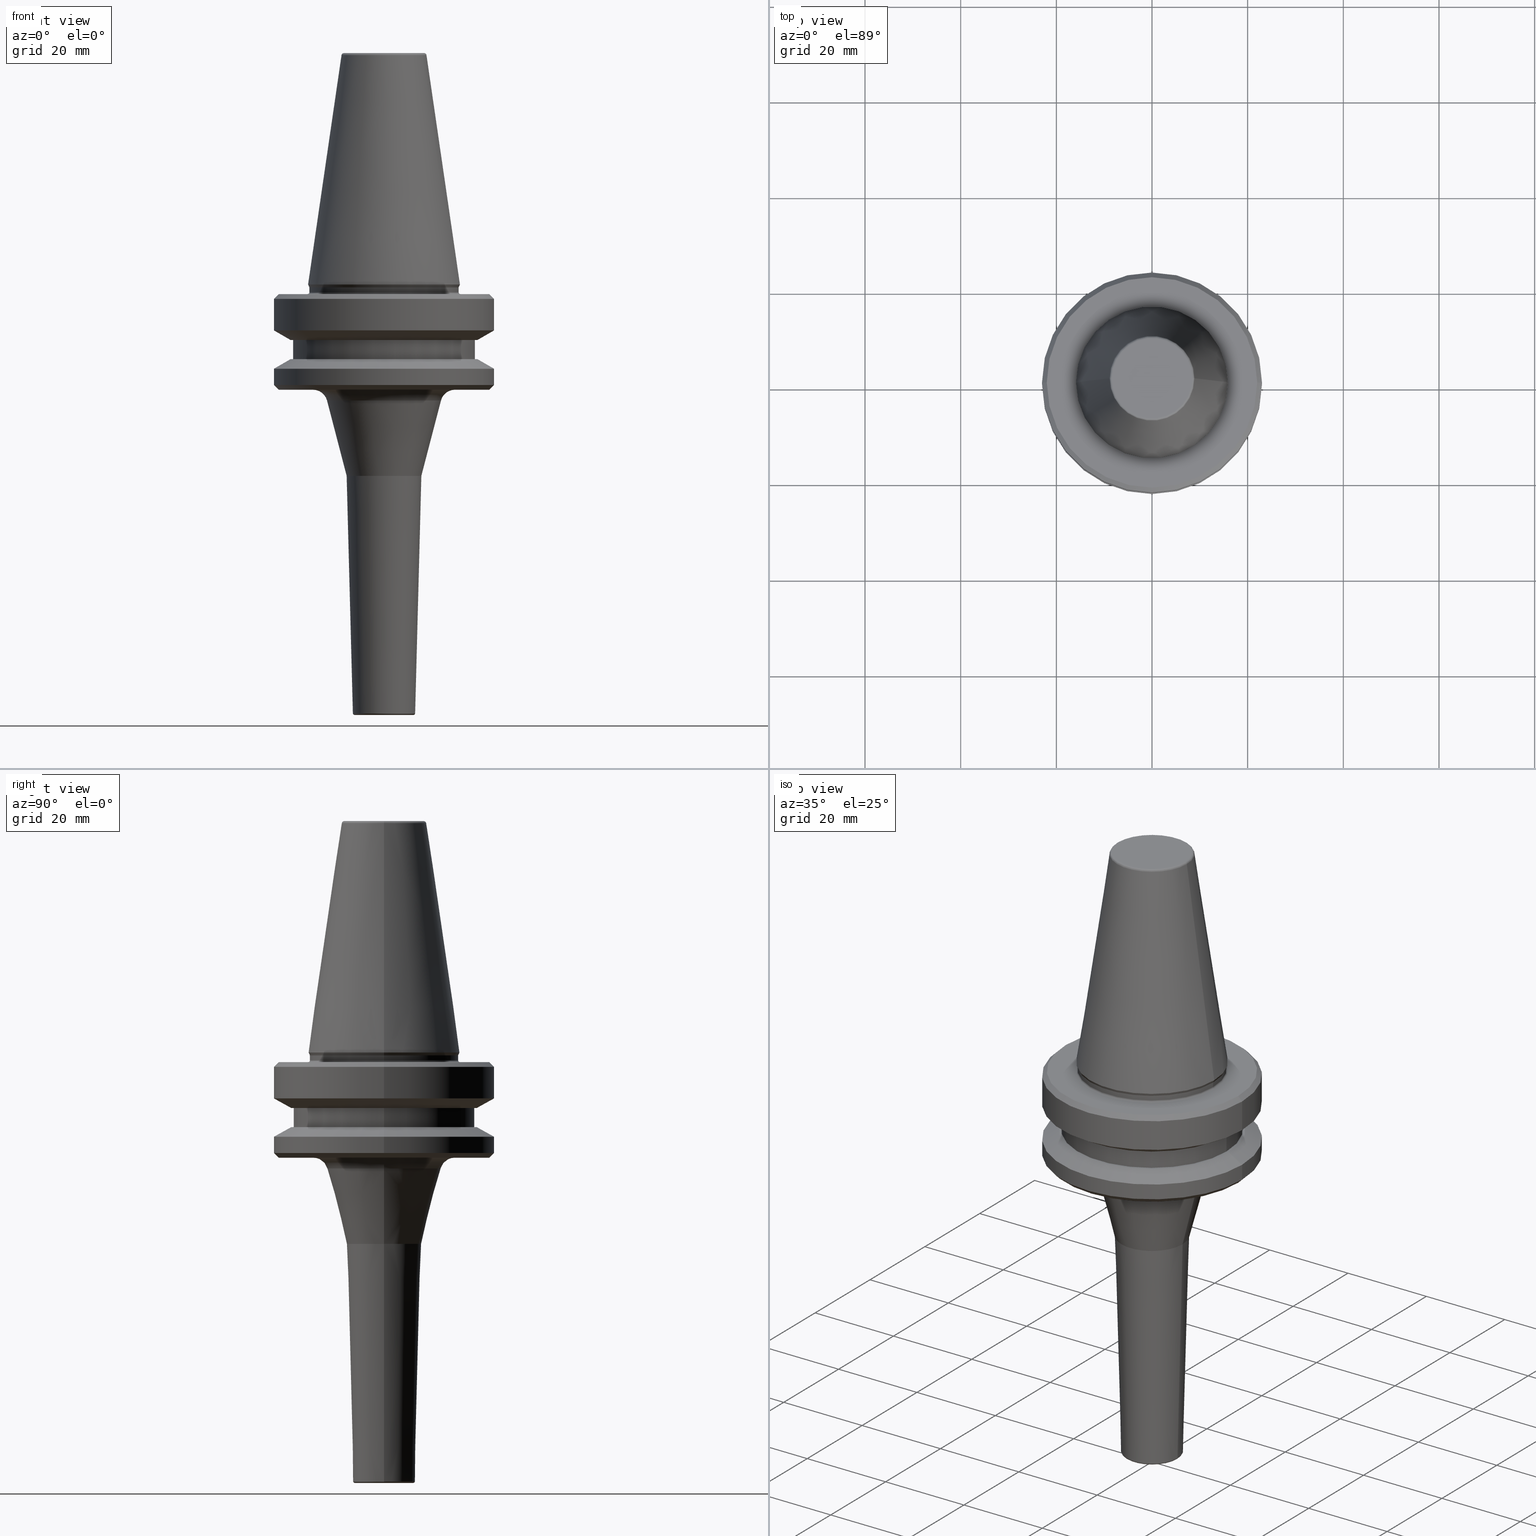
[diagram: canonical four-view strip — front | top / right | iso, engineering-drawing reading convention]
A machine part, canonical four-view strip (front | top / right | iso — engineering-drawing reading convention). The complete STEP part file that produces these views, byte-faithful:
ISO-10303-21;
HEADER;
FILE_DESCRIPTION (( 'STEP AP203' ),
    '1' );
FILE_NAME ('BT30 DMC 06 090 AD-2.5G 25000 SL.STEP',
    '2019-05-24T09:04:20',
    ( '' ),
    ( '' ),
    'SwSTEP 2.0',
    'SolidWorks 2014',
    '' );
FILE_SCHEMA (( 'CONFIG_CONTROL_DESIGN' ));
ENDSEC;

DATA;
#1 = CIRCLE ( 'NONE', #175, 15.87500000000002800 ) ;
#2 = EDGE_LOOP ( 'NONE', ( #732, #693 ) ) ;
#3 = DIRECTION ( 'NONE',  ( 1.000000000000000000, 0.0000000000000000000, 0.0000000000000000000 ) ) ;
#4 = ORIENTED_EDGE ( 'NONE', *, *, #885, .F. ) ;
#5 = CARTESIAN_POINT ( 'NONE',  ( 0.0000000000000000000, 0.0000000000000000000, -11.59999999999961100 ) ) ;
#6 = EDGE_LOOP ( 'NONE', ( #625, #359, #145, #588 ) ) ;
#7 = EDGE_LOOP ( 'NONE', ( #16, #125, #609, #622 ) ) ;
#8 = EDGE_LOOP ( 'NONE', ( #826, #1002, #470, #877 ) ) ;
#9 = CC_DESIGN_PERSON_AND_ORGANIZATION_ASSIGNMENT ( #971, #844, ( #352 ) ) ;
#10 = EDGE_CURVE ( 'NONE', #580, #158, #632, .T. ) ;
#11 = CIRCLE ( 'NONE', #629, 8.878994820583560700 ) ;
#12 = AXIS2_PLACEMENT_3D ( 'NONE', #848, #934, #146 ) ;
#13 = CIRCLE ( 'NONE', #426, 19.00000000000023800 ) ;
#14 = FACE_OUTER_BOUND ( 'NONE', #1026, .T. ) ;
#15 = DIRECTION ( 'NONE',  ( -0.0000000000000000000, -0.0000000000000000000, 1.000000000000000000 ) ) ;
#16 = ORIENTED_EDGE ( 'NONE', *, *, #522, .F. ) ;
#17 = ORIENTED_EDGE ( 'NONE', *, *, #446, .T. ) ;
#18 = VERTEX_POINT ( 'NONE', #956 ) ;
#19 = DIRECTION ( 'NONE',  ( -0.0000000000000000000, -0.0000000000000000000, 1.000000000000000000 ) ) ;
#20 = APPROVAL ( #684, 'UNSPECIFIED' ) ;
#21 = DIRECTION ( 'NONE',  ( 1.000000000000000000, 0.0000000000000000000, 0.0000000000000000000 ) ) ;
#22 = CIRCLE ( 'NONE', #953, 19.53610161513788400 ) ;
#23 = ORIENTED_EDGE ( 'NONE', *, *, #819, .F. ) ;
#24 = AXIS2_PLACEMENT_3D ( 'NONE', #717, #324, #3 ) ;
#25 = ORIENTED_EDGE ( 'NONE', *, *, #10, .T. ) ;
#26 = ORIENTED_EDGE ( 'NONE', *, *, #674, .T. ) ;
#27 = DIRECTION ( 'NONE',  ( 1.000000000000000000, 0.0000000000000000000, 0.0000000000000000000 ) ) ;
#28 = EDGE_LOOP ( 'NONE', ( #58, #892, #366, #618 ) ) ;
#29 = ORIENTED_EDGE ( 'NONE', *, *, #73, .T. ) ;
#30 = DIRECTION ( 'NONE',  ( -0.2521728199895472100, 3.088226368321606600E-017, 0.9676822148094483800 ) ) ;
#31 = CARTESIAN_POINT ( 'NONE',  ( 0.0000000000000000000, 0.0000000000000000000, -20.99999999999990800 ) ) ;
#32 = DIRECTION ( 'NONE',  ( 1.000000000000000000, 0.0000000000000000000, 0.0000000000000000000 ) ) ;
#33 = AXIS2_PLACEMENT_3D ( 'NONE', #939, #52, #538 ) ;
#34 = DIRECTION ( 'NONE',  ( 0.8660254037844388200, 1.060575238724907200E-016, -0.4999999999999997200 ) ) ;
#35 = ADVANCED_FACE ( 'NONE', ( #502, #14 ), #774, .F. ) ;
#36 = CARTESIAN_POINT ( 'NONE',  ( 0.0000000000000000000, 0.0000000000000000000, -21.99999999999965900 ) ) ;
#37 = DIRECTION ( 'NONE',  ( 1.000000000000000000, 0.0000000000000000000, 0.0000000000000000000 ) ) ;
#38 = CIRCLE ( 'NONE', #343, 16.00000000000045800 ) ;
#39 = CIRCLE ( 'NONE', #798, 22.00000000000002100 ) ;
#40 = ORIENTED_EDGE ( 'NONE', *, *, #268, .T. ) ;
#41 = EDGE_CURVE ( 'NONE', #868, #389, #835, .T. ) ;
#42 = ORIENTED_EDGE ( 'NONE', *, *, #245, .F. ) ;
#43 = AXIS2_PLACEMENT_3D ( 'NONE', #635, #789, #727 ) ;
#44 = ORIENTED_EDGE ( 'NONE', *, *, #234, .F. ) ;
#45 = DIRECTION ( 'NONE',  ( 1.000000000000000000, 0.0000000000000000000, 0.0000000000000000000 ) ) ;
#46 = DIRECTION ( 'NONE',  ( 1.000000000000000000, 0.0000000000000000000, 0.0000000000000000000 ) ) ;
#47 = CARTESIAN_POINT ( 'NONE',  ( 0.0000000000000000000, 0.0000000000000000000, -2.000000000000223800 ) ) ;
#48 = SECURITY_CLASSIFICATION_LEVEL ( 'unclassified' ) ;
#49 = EDGE_CURVE ( 'NONE', #755, #904, #387, .T. ) ;
#50 = CARTESIAN_POINT ( 'NONE',  ( 0.0000000000000000000, 0.0000000000000000000, 47.89999999999938800 ) ) ;
#51 = COORDINATED_UNIVERSAL_TIME_OFFSET ( 5, 30, .AHEAD. ) ;
#52 = DIRECTION ( 'NONE',  ( -0.0000000000000000000, -0.0000000000000000000, 1.000000000000000000 ) ) ;
#53 = ADVANCED_FACE ( 'NONE', ( #289 ), #675, .T. ) ;
#54 = FACE_OUTER_BOUND ( 'NONE', #620, .T. ) ;
#55 = DIRECTION ( 'NONE',  ( -0.0000000000000000000, -0.0000000000000000000, 1.000000000000000000 ) ) ;
#56 = DIRECTION ( 'NONE',  ( 1.000000000000000000, 0.0000000000000000000, 0.0000000000000000000 ) ) ;
#57 = VECTOR ( 'NONE', #874, 1000.000000000000000 ) ;
#58 = ORIENTED_EDGE ( 'NONE', *, *, #72, .F. ) ;
#59 = DIRECTION ( 'NONE',  ( -1.000000000000000000, 1.224646799147352200E-016, 0.0000000000000000000 ) ) ;
#60 = EDGE_LOOP ( 'NONE', ( #890, #1015, #975, #69 ) ) ;
#61 = CARTESIAN_POINT ( 'NONE',  ( 0.0000000000000000000, 0.0000000000000000000, -1.599999999999823800 ) ) ;
#62 = EDGE_CURVE ( 'NONE', #997, #648, #631, .T. ) ;
#63 = AXIS2_PLACEMENT_3D ( 'NONE', #1022, #544, #59 ) ;
#64 = DIRECTION ( 'NONE',  ( 0.0000000000000000000, -1.000000000000000000, 0.0000000000000000000 ) ) ;
#65 = CARTESIAN_POINT ( 'NONE',  ( 0.0000000000000000000, 0.0000000000000000000, -1.599999999999823800 ) ) ;
#66 = LINE ( 'NONE', #385, #501 ) ;
#67 = CIRCLE ( 'NONE', #905, 0.4000000000004009200 ) ;
#68 = EDGE_LOOP ( 'NONE', ( #523, #621, #87, #1040 ) ) ;
#69 = ORIENTED_EDGE ( 'NONE', *, *, #748, .F. ) ;
#70 = CARTESIAN_POINT ( 'NONE',  ( 11.91536068568180300, 0.0000000000000000000, -24.24348154003075400 ) ) ;
#71 = EDGE_LOOP ( 'NONE', ( #794, #589, #856, #598 ) ) ;
#72 = EDGE_CURVE ( 'NONE', #646, #471, #402, .T. ) ;
#73 = EDGE_CURVE ( 'NONE', #389, #440, #607, .T. ) ;
#74 = CARTESIAN_POINT ( 'NONE',  ( 0.0000000000000000000, 0.0000000000000000000, -15.60000000000005800 ) ) ;
#75 = DIRECTION ( 'NONE',  ( 1.000000000000000000, 0.0000000000000000000, 0.0000000000000000000 ) ) ;
#76 = ADVANCED_FACE ( 'NONE', ( #451 ), #1039, .T. ) ;
#77 = CARTESIAN_POINT ( 'NONE',  ( 0.0000000000000000000, 0.0000000000000000000, -9.600117335054836300 ) ) ;
#78 = CARTESIAN_POINT ( 'NONE',  ( 0.0000000000000000000, 0.0000000000000000000, -2.000000000000223800 ) ) ;
#79 = EDGE_CURVE ( 'NONE', #665, #537, #13, .T. ) ;
#80 = AXIS2_PLACEMENT_3D ( 'NONE', #172, #489, #499 ) ;
#81 = CIRCLE ( 'NONE', #652, 23.00000000000002100 ) ;
#82 = DIRECTION ( 'NONE',  ( 0.0000000000000000000, 0.0000000000000000000, -1.000000000000000000 ) ) ;
#83 = CONICAL_SURFACE ( 'NONE', #692, 7.809296078459246000, 0.2549249863712674800 ) ;
#84 = CARTESIAN_POINT ( 'NONE',  ( -19.53610161513788400, 0.0000000000000000000, -15.60000000000005800 ) ) ;
#85 = CIRCLE ( 'NONE', #728, 23.00000000000002100 ) ;
#86 = ORIENTED_EDGE ( 'NONE', *, *, #642, .F. ) ;
#87 = ORIENTED_EDGE ( 'NONE', *, *, #545, .T. ) ;
#88 = DIRECTION ( 'NONE',  ( -0.0000000000000000000, -0.0000000000000000000, 1.000000000000000000 ) ) ;
#89 = EDGE_LOOP ( 'NONE', ( #495, #766, #100, #775 ) ) ;
#90 = EDGE_CURVE ( 'NONE', #842, #440, #216, .T. ) ;
#91 = AXIS2_PLACEMENT_3D ( 'NONE', #50, #931, #767 ) ;
#92 = ORIENTED_EDGE ( 'NONE', *, *, #990, .T. ) ;
#93 = EDGE_CURVE ( 'NONE', #805, #947, #792, .T. ) ;
#94 = DIRECTION ( 'NONE',  ( -0.0000000000000000000, -0.0000000000000000000, 1.000000000000000000 ) ) ;
#95 = DIRECTION ( 'NONE',  ( 1.000000000000000000, 0.0000000000000000000, 0.0000000000000000000 ) ) ;
#96 = EDGE_CURVE ( 'NONE', #520, #817, #38, .T. ) ;
#97 = CIRCLE ( 'NONE', #63, 0.4000000000004416700 ) ;
#98 = VERTEX_POINT ( 'NONE', #1019 ) ;
#99 = ORIENTED_EDGE ( 'NONE', *, *, #968, .F. ) ;
#100 = ORIENTED_EDGE ( 'NONE', *, *, #642, .T. ) ;
#101 = DIRECTION ( 'NONE',  ( 0.0000000000000000000, 0.0000000000000000000, -1.000000000000000000 ) ) ;
#102 = ADVANCED_FACE ( 'NONE', ( #887 ), #834, .T. ) ;
#103 = VERTEX_POINT ( 'NONE', #561 ) ;
#104 = EDGE_CURVE ( 'NONE', #197, #646, #67, .T. ) ;
#105 = AXIS2_PLACEMENT_3D ( 'NONE', #998, #516, #32 ) ;
#106 = CARTESIAN_POINT ( 'NONE',  ( 0.0000000000000000000, 19.53610161513942600, -11.59999999999961100 ) ) ;
#107 = DATE_AND_TIME ( #220, #822 ) ;
#108 = PERSON ( 'UNSPECIFIED', 'UNSPECIFIED', 'UNSPECIFIED', ('UNSPECIFIED'), ('UNSPECIFIED'), ('UNSPECIFIED') ) ;
#109 = APPROVAL_PERSON_ORGANIZATION ( #132, #568, #461 ) ;
#110 = CC_DESIGN_APPROVAL ( #20, ( #583 ) ) ;
#111 = AXIS2_PLACEMENT_3D ( 'NONE', #595, #429, #515 ) ;
#112 = CIRCLE ( 'NONE', #507, 8.384228427309182100 ) ;
#113 = EDGE_CURVE ( 'NONE', #197, #565, #171, .T. ) ;
#114 = VECTOR ( 'NONE', #711, 1000.000000000000100 ) ;
#115 = ORIENTED_EDGE ( 'NONE', *, *, #1048, .T. ) ;
#116 = CARTESIAN_POINT ( 'NONE',  ( 0.0000000000000000000, 2.775557561562891400E-014, -90.00000000000029800 ) ) ;
#117 = ORIENTED_EDGE ( 'NONE', *, *, #113, .F. ) ;
#118 = APPROVAL ( #762, 'UNSPECIFIED' ) ;
#119 = EDGE_CURVE ( 'NONE', #755, #1000, #586, .T. ) ;
#120 = DIRECTION ( 'NONE',  ( -0.0000000000000000000, -0.0000000000000000000, 1.000000000000000000 ) ) ;
#121 = CONICAL_SURFACE ( 'NONE', #267, 15.87500000000002800, 0.1448138461595632500 ) ;
#122 = DIRECTION ( 'NONE',  ( 1.000000000000000000, 0.0000000000000000000, 0.0000000000000000000 ) ) ;
#123 = CIRCLE ( 'NONE', #24, 19.53610161513788400 ) ;
#124 = AXIS2_PLACEMENT_3D ( 'NONE', #189, #591, #342 ) ;
#125 = ORIENTED_EDGE ( 'NONE', *, *, #573, .T. ) ;
#126 = ORIENTED_EDGE ( 'NONE', *, *, #62, .T. ) ;
#127 = DIRECTION ( 'NONE',  ( 1.000000000000000000, 0.0000000000000000000, 0.0000000000000000000 ) ) ;
#128 = DIRECTION ( 'NONE',  ( -1.000000000000000000, 1.224646799147354200E-016, 0.0000000000000000000 ) ) ;
#129 = ADVANCED_FACE ( 'NONE', ( #801 ), #349, .T. ) ;
#130 = EDGE_CURVE ( 'NONE', #158, #705, #376, .T. ) ;
#131 = DIRECTION ( 'NONE',  ( -0.0000000000000000000, -0.0000000000000000000, 1.000000000000000000 ) ) ;
#132 = PERSON_AND_ORGANIZATION ( #108, #571 ) ;
#133 = DIRECTION ( 'NONE',  ( 1.000000000000000000, 0.0000000000000000000, 0.0000000000000000000 ) ) ;
#134 = PERSON_AND_ORGANIZATION_ROLE ( 'design_owner' ) ;
#135 = ADVANCED_FACE ( 'NONE', ( #480 ), #536, .T. ) ;
#136 = CARTESIAN_POINT ( 'NONE',  ( 16.00000000000054000, 0.0000000000000000000, -2.000000000000244700 ) ) ;
#137 = CIRCLE ( 'NONE', #202, 16.00000000000045800 ) ;
#138 = CYLINDRICAL_SURFACE ( 'NONE', #188, 23.00000000000002100 ) ;
#139 = DIRECTION ( 'NONE',  ( -0.0000000000000000000, -0.0000000000000000000, 1.000000000000000000 ) ) ;
#140 = FACE_OUTER_BOUND ( 'NONE', #756, .T. ) ;
#141 = DATE_TIME_ROLE ( 'classification_date' ) ;
#142 = AXIS2_PLACEMENT_3D ( 'NONE', #564, #627, #602 ) ;
#143 = CARTESIAN_POINT ( 'NONE',  ( -8.384228427309265500, 1.026771850682453800E-015, 47.89999999999938800 ) ) ;
#144 = ADVANCED_FACE ( 'NONE', ( #563 ), #985, .T. ) ;
#145 = ORIENTED_EDGE ( 'NONE', *, *, #734, .F. ) ;
#146 = DIRECTION ( 'NONE',  ( 1.000000000000000000, 0.0000000000000000000, 0.0000000000000000000 ) ) ;
#147 = DIRECTION ( 'NONE',  ( -0.0000000000000000000, -0.0000000000000000000, 1.000000000000000000 ) ) ;
#148 = COORDINATED_UNIVERSAL_TIME_OFFSET ( 5, 30, .AHEAD. ) ;
#149 = CALENDAR_DATE ( 2019, 24, 5 ) ;
#150 = AXIS2_PLACEMENT_3D ( 'NONE', #676, #557, #1041 ) ;
#151 = DIRECTION ( 'NONE',  ( 1.000000000000000000, 0.0000000000000000000, 0.0000000000000000000 ) ) ;
#152 = CIRCLE ( 'NONE', #973, 15.60000000000014200 ) ;
#153 = LINE ( 'NONE', #251, #752 ) ;
#154 = ADVANCED_FACE ( 'NONE', ( #423 ), #721, .T. ) ;
#155 = ORIENTED_EDGE ( 'NONE', *, *, #455, .T. ) ;
#156 = AXIS2_PLACEMENT_3D ( 'NONE', #235, #855, #697 ) ;
#157 = ADVANCED_FACE ( 'NONE', ( #744 ), #302, .T. ) ;
#158 = VERTEX_POINT ( 'NONE', #799 ) ;
#159 = DIRECTION ( 'NONE',  ( 1.000000000000000000, 0.0000000000000000000, 0.0000000000000000000 ) ) ;
#160 = ORIENTED_EDGE ( 'NONE', *, *, #545, .F. ) ;
#161 = ORIENTED_EDGE ( 'NONE', *, *, #113, .T. ) ;
#162 = PERSON_AND_ORGANIZATION ( #108, #571 ) ;
#163 = DIRECTION ( 'NONE',  ( 1.000000000000000000, 0.0000000000000000000, 0.0000000000000000000 ) ) ;
#164 = DIRECTION ( 'NONE',  ( -0.0000000000000000000, -0.0000000000000000000, 1.000000000000000000 ) ) ;
#165 = AXIS2_PLACEMENT_3D ( 'NONE', #373, #926, #457 ) ;
#166 = DIRECTION ( 'NONE',  ( 0.0000000000000000000, 0.0000000000000000000, -1.000000000000000000 ) ) ;
#167 = DIRECTION ( 'NONE',  ( 1.000000000000000000, 0.0000000000000000000, 0.0000000000000000000 ) ) ;
#168 = TOROIDAL_SURFACE ( 'NONE', #1044, 14.81840733011005500, 2.999999999999799700 ) ;
#169 = ADVANCED_FACE ( 'NONE', ( #510 ), #961, .T. ) ;
#170 = CIRCLE ( 'NONE', #240, 7.809296078459246000 ) ;
#171 = CIRCLE ( 'NONE', #264, 6.116367272004236400 ) ;
#172 = CARTESIAN_POINT ( 'NONE',  ( 0.0000000000000000000, 0.0000000000000000000, 47.89999999999938800 ) ) ;
#173 = AXIS2_PLACEMENT_3D ( 'NONE', #213, #528, #46 ) ;
#174 = CARTESIAN_POINT ( 'NONE',  ( 14.81840733011012500, 0.0000000000000000000, -21.99999999999966200 ) ) ;
#175 = AXIS2_PLACEMENT_3D ( 'NONE', #1046, #481, #876 ) ;
#176 = CARTESIAN_POINT ( 'NONE',  ( -19.00000000000023800, 2.326828918380000200E-015, 105.6755792788445500 ) ) ;
#177 = DIRECTION ( 'NONE',  ( 1.000000000000000000, 0.0000000000000000000, 0.0000000000000000000 ) ) ;
#178 = PRODUCT ( 'BT30 DMC 06 090 AD-2.5G 25000 SL', 'BT30 DMC 06 090 AD-2.5G 25000 SL', '', ( #608 ) ) ;
#179 = EDGE_CURVE ( 'NONE', #1000, #436, #330, .T. ) ;
#180 = DIRECTION ( 'NONE',  ( 0.0000000000000000000, 0.0000000000000000000, -1.000000000000000000 ) ) ;
#181 = CIRCLE ( 'NONE', #986, 19.00000000000023800 ) ;
#182 = CARTESIAN_POINT ( 'NONE',  ( 0.0000000000000000000, 0.0000000000000000000, -89.67947039659931400 ) ) ;
#183 = VECTOR ( 'NONE', #408, 1000.000000000000000 ) ;
#184 = ORIENTED_EDGE ( 'NONE', *, *, #420, .T. ) ;
#185 = EDGE_LOOP ( 'NONE', ( #393, #818, #439, #282 ) ) ;
#186 = VERTEX_POINT ( 'NONE', #265 ) ;
#187 = EDGE_CURVE ( 'NONE', #580, #807, #852, .T. ) ;
#188 = AXIS2_PLACEMENT_3D ( 'NONE', #927, #442, #613 ) ;
#189 = CARTESIAN_POINT ( 'NONE',  ( 0.0000000000000000000, 0.0000000000000000000, 105.6755792788445500 ) ) ;
#190 = APPROVAL_DATE_TIME ( #456, #20 ) ;
#191 = EDGE_CURVE ( 'NONE', #807, #705, #85, .T. ) ;
#192 = FACE_BOUND ( 'NONE', #339, .T. ) ;
#193 = DIRECTION ( 'NONE',  ( 1.000000000000000000, 0.0000000000000000000, 0.0000000000000000000 ) ) ;
#194 = LINE ( 'NONE', #891, #448 ) ;
#195 = VECTOR ( 'NONE', #873, 1000.000000000000000 ) ;
#196 = ORIENTED_EDGE ( 'NONE', *, *, #263, .T. ) ;
#197 = VERTEX_POINT ( 'NONE', #803 ) ;
#198 = ORIENTED_EDGE ( 'NONE', *, *, #922, .T. ) ;
#199 = ADVANCED_FACE ( 'NONE', ( #140 ), #575, .T. ) ;
#200 = DIRECTION ( 'NONE',  ( 1.000000000000000000, 0.0000000000000000000, 0.0000000000000000000 ) ) ;
#201 = CARTESIAN_POINT ( 'NONE',  ( -15.60000000000018300, 1.934941942652857500E-015, -1.599999999999823800 ) ) ;
#202 = AXIS2_PLACEMENT_3D ( 'NONE', #450, #1006, #527 ) ;
#203 = CARTESIAN_POINT ( 'NONE',  ( 0.0000000000000000000, 8.384228427309182100, 48.39999999999956500 ) ) ;
#204 = AXIS2_PLACEMENT_3D ( 'NONE', #203, #749, #284 ) ;
#205 = FACE_OUTER_BOUND ( 'NONE', #483, .T. ) ;
#206 = CIRCLE ( 'NONE', #811, 22.00000000000013100 ) ;
#207 = EDGE_LOOP ( 'NONE', ( #882, #236 ) ) ;
#208 = ORIENTED_EDGE ( 'NONE', *, *, #248, .T. ) ;
#209 = EDGE_CURVE ( 'NONE', #654, #98, #206, .T. ) ;
#210 = ADVANCED_FACE ( 'NONE', ( #851 ), #1024, .T. ) ;
#211 = CYLINDRICAL_SURFACE ( 'NONE', #863, 23.00000000000002100 ) ;
#212 = CC_DESIGN_SECURITY_CLASSIFICATION ( #583, ( #810 ) ) ;
#213 = CARTESIAN_POINT ( 'NONE',  ( 0.0000000000000000000, 0.0000000000000000000, 0.0000000000000000000 ) ) ;
#214 = CYLINDRICAL_SURFACE ( 'NONE', #372, 19.00000000000023800 ) ;
#215 = AXIS2_PLACEMENT_3D ( 'NONE', #1038, #15, #193 ) ;
#216 = LINE ( 'NONE', #462, #195 ) ;
#217 = VECTOR ( 'NONE', #698, 1000.000000000000000 ) ;
#218 = APPLICATION_PROTOCOL_DEFINITION ( 'international standard', 'config_control_design', 1994, #681 ) ;
#219 = EDGE_LOOP ( 'NONE', ( #708, #825, #160, #428 ) ) ;
#220 = CALENDAR_DATE ( 2019, 24, 5 ) ;
#221 = PERSON_AND_ORGANIZATION ( #108, #571 ) ;
#222 = CC_DESIGN_DATE_AND_TIME_ASSIGNMENT ( #430, #377, ( #352 ) ) ;
#223 = DIRECTION ( 'NONE',  ( 0.0000000000000000000, 0.0000000000000000000, -1.000000000000000000 ) ) ;
#224 = EDGE_CURVE ( 'NONE', #977, #436, #643, .T. ) ;
#225 = APPROVAL_ROLE ( '' ) ;
#226 = AXIS2_PLACEMENT_3D ( 'NONE', #491, #296, #37 ) ;
#227 = DIRECTION ( 'NONE',  ( -1.000000000000000000, 1.224646799147353700E-016, 0.0000000000000000000 ) ) ;
#228 = PLANE ( 'NONE',  #275 ) ;
#229 = CARTESIAN_POINT ( 'NONE',  ( 19.00000000000023800, 0.0000000000000000000, -11.59999999999961100 ) ) ;
#230 = DIRECTION ( 'NONE',  ( -0.0000000000000000000, -0.0000000000000000000, 1.000000000000000000 ) ) ;
#231 = DIRECTION ( 'NONE',  ( -0.0000000000000000000, -0.0000000000000000000, 1.000000000000000000 ) ) ;
#232 = FACE_OUTER_BOUND ( 'NONE', #6, .T. ) ;
#233 = ORIENTED_EDGE ( 'NONE', *, *, #474, .F. ) ;
#234 = EDGE_CURVE ( 'NONE', #1003, #537, #936, .T. ) ;
#235 = CARTESIAN_POINT ( 'NONE',  ( 0.0000000000000000000, 0.0000000000000000000, 105.6755792788445500 ) ) ;
#236 = ORIENTED_EDGE ( 'NONE', *, *, #757, .T. ) ;
#237 = EDGE_LOOP ( 'NONE', ( #332, #354 ) ) ;
#238 = DIRECTION ( 'NONE',  ( 1.000000000000000000, 0.0000000000000000000, 0.0000000000000000000 ) ) ;
#239 = ADVANCED_FACE ( 'NONE', ( #415 ), #946, .T. ) ;
#240 = AXIS2_PLACEMENT_3D ( 'NONE', #435, #355, #21 ) ;
#241 = DIRECTION ( 'NONE',  ( 1.000000000000000000, 0.0000000000000000000, 0.0000000000000000000 ) ) ;
#242 = DIRECTION ( 'NONE',  ( -0.0000000000000000000, -0.0000000000000000000, 1.000000000000000000 ) ) ;
#243 = CIRCLE ( 'NONE', #486, 23.00000000000002100 ) ;
#244 = FACE_OUTER_BOUND ( 'NONE', #599, .T. ) ;
#245 = EDGE_CURVE ( 'NONE', #452, #805, #123, .T. ) ;
#246 = ORIENTED_EDGE ( 'NONE', *, *, #539, .F. ) ;
#247 = AXIS2_PLACEMENT_3D ( 'NONE', #77, #638, #252 ) ;
#248 = EDGE_CURVE ( 'NONE', #705, #807, #361, .T. ) ;
#249 = ORIENTED_EDGE ( 'NONE', *, *, #130, .T. ) ;
#250 = ADVANCED_FACE ( 'NONE', ( #772 ), #995, .T. ) ;
#251 = CARTESIAN_POINT ( 'NONE',  ( -15.60000000000016300, 1.910449006669890600E-015, 105.6755792788445500 ) ) ;
#252 = DIRECTION ( 'NONE',  ( 1.000000000000000000, 0.0000000000000000000, 0.0000000000000000000 ) ) ;
#253 = DATE_AND_TIME ( #149, #325 ) ;
#254 = DIRECTION ( 'NONE',  ( 1.000000000000000000, 0.0000000000000000000, 0.0000000000000000000 ) ) ;
#255 = DIRECTION ( 'NONE',  ( -0.02617694830787338800, 3.205751595668287100E-018, 0.9996573249755572600 ) ) ;
#256 = DIRECTION ( 'NONE',  ( -1.000000000000000000, 0.0000000000000000000, 0.0000000000000000000 ) ) ;
#257 = CARTESIAN_POINT ( 'NONE',  ( 0.0000000000000000000, 0.0000000000000000000, -15.60000000000005800 ) ) ;
#258 = CIRCLE ( 'NONE', #367, 15.87500000000002800 ) ;
#259 = ORIENTED_EDGE ( 'NONE', *, *, #530, .F. ) ;
#260 = CARTESIAN_POINT ( 'NONE',  ( 0.0000000000000000000, 0.0000000000000000000, -89.59999999999990900 ) ) ;
#261 = ORIENTED_EDGE ( 'NONE', *, *, #804, .F. ) ;
#262 = CARTESIAN_POINT ( 'NONE',  ( -15.87500000000002800, 1.944126793646426800E-015, 0.0000000000000000000 ) ) ;
#263 = EDGE_CURVE ( 'NONE', #805, #452, #22, .T. ) ;
#264 = AXIS2_PLACEMENT_3D ( 'NONE', #475, #378, #716 ) ;
#265 = CARTESIAN_POINT ( 'NONE',  ( 23.00000000000002100, 0.0000000000000000000, -20.99999999999990800 ) ) ;
#266 = DIRECTION ( 'NONE',  ( 1.000000000000000000, 0.0000000000000000000, 0.0000000000000000000 ) ) ;
#267 = AXIS2_PLACEMENT_3D ( 'NONE', #531, #610, #683 ) ;
#268 = EDGE_CURVE ( 'NONE', #1028, #436, #258, .T. ) ;
#269 = LINE ( 'NONE', #827, #814 ) ;
#270 = CIRCLE ( 'NONE', #585, 6.116367272004236400 ) ;
#271 = ORIENTED_EDGE ( 'NONE', *, *, #485, .T. ) ;
#272 = PLANE ( 'NONE',  #763 ) ;
#273 = ORIENTED_EDGE ( 'NONE', *, *, #62, .F. ) ;
#274 = EDGE_CURVE ( 'NONE', #512, #977, #153, .T. ) ;
#275 = AXIS2_PLACEMENT_3D ( 'NONE', #937, #867, #1033 ) ;
#276 = DIRECTION ( 'NONE',  ( 0.2521728199895472100, 0.0000000000000000000, 0.9676822148094483800 ) ) ;
#277 = PERSON_AND_ORGANIZATION ( #108, #571 ) ;
#278 = LOCAL_TIME ( 14, 34, 20.00000000000000000, #782 ) ;
#279 = AXIS2_PLACEMENT_3D ( 'NONE', #993, #513, #27 ) ;
#280 = CARTESIAN_POINT ( 'NONE',  ( -23.00000000000002100, 2.816687638038915100E-015, -17.59988266494572100 ) ) ;
#281 = CIRCLE ( 'NONE', #493, 15.60000000000014200 ) ;
#282 = ORIENTED_EDGE ( 'NONE', *, *, #503, .F. ) ;
#283 = ORIENTED_EDGE ( 'NONE', *, *, #431, .T. ) ;
#284 = DIRECTION ( 'NONE',  ( -1.000000000000000000, 0.0000000000000000000, -0.0000000000000000000 ) ) ;
#285 = ORIENTED_EDGE ( 'NONE', *, *, #340, .T. ) ;
#286 = DIRECTION ( 'NONE',  ( -0.0000000000000000000, -0.0000000000000000000, 1.000000000000000000 ) ) ;
#287 = CARTESIAN_POINT ( 'NONE',  ( 0.0000000000000000000, 0.0000000000000000000, -21.99999999999979700 ) ) ;
#288 = CIRCLE ( 'NONE', #395, 2.999999999999801500 ) ;
#289 = FACE_OUTER_BOUND ( 'NONE', #838, .T. ) ;
#290 = DIRECTION ( 'NONE',  ( 1.000000000000000000, 0.0000000000000000000, 0.0000000000000000000 ) ) ;
#291 = ORIENTED_EDGE ( 'NONE', *, *, #90, .F. ) ;
#292 = ORIENTED_EDGE ( 'NONE', *, *, #506, .T. ) ;
#293 =( NAMED_UNIT ( * ) PLANE_ANGLE_UNIT ( ) SI_UNIT ( $, .RADIAN. ) );
#294 = AXIS2_PLACEMENT_3D ( 'NONE', #1052, #180, #647 ) ;
#295 = APPROVAL_ROLE ( '' ) ;
#296 = DIRECTION ( 'NONE',  ( -0.0000000000000000000, -0.0000000000000000000, 1.000000000000000000 ) ) ;
#297 = FACE_OUTER_BOUND ( 'NONE', #865, .T. ) ;
#298 = DIRECTION ( 'NONE',  ( 1.000000000000000000, 0.0000000000000000000, 0.0000000000000000000 ) ) ;
#299 = CIRCLE ( 'NONE', #929, 7.809296078459246000 ) ;
#300 = CARTESIAN_POINT ( 'NONE',  ( 0.0000000000000000000, 0.0000000000000000000, -89.59999999999990900 ) ) ;
#301 = AXIS2_PLACEMENT_3D ( 'NONE', #1051, #529, #1034 ) ;
#302 = CONICAL_SURFACE ( 'NONE', #294, 23.00000000000002100, 0.7853981633975037900 ) ;
#303 = ORIENTED_EDGE ( 'NONE', *, *, #245, .T. ) ;
#304 = ADVANCED_FACE ( 'NONE', ( #205 ), #519, .T. ) ;
#305 = EDGE_LOOP ( 'NONE', ( #99, #341 ) ) ;
#306 = DIRECTION ( 'NONE',  ( 0.0000000000000000000, 0.0000000000000000000, -1.000000000000000000 ) ) ;
#307 = EDGE_CURVE ( 'NONE', #537, #665, #1023, .T. ) ;
#308 = AXIS2_PLACEMENT_3D ( 'NONE', #576, #556, #797 ) ;
#309 = CARTESIAN_POINT ( 'NONE',  ( -22.00000000000002100, 0.0000000000000000000, -2.000000000000223800 ) ) ;
#310 = CIRCLE ( 'NONE', #323, 0.5000000000002016200 ) ;
#311 = AXIS2_PLACEMENT_3D ( 'NONE', #736, #656, #345 ) ;
#312 = VERTEX_POINT ( 'NONE', #414 ) ;
#313 = EDGE_LOOP ( 'NONE', ( #44, #525, #115, #949 ) ) ;
#314 = CARTESIAN_POINT ( 'NONE',  ( 23.00000000000002100, 0.0000000000000000000, -17.59988266494572100 ) ) ;
#315 = ADVANCED_FACE ( 'NONE', ( #974 ), #972, .T. ) ;
#316 = ORIENTED_EDGE ( 'NONE', *, *, #187, .F. ) ;
#317 = CARTESIAN_POINT ( 'NONE',  ( 15.87500000000002800, 1.944126793646426800E-015, 0.0000000000000000000 ) ) ;
#318 = VERTEX_POINT ( 'NONE', #872 ) ;
#319 = DIRECTION ( 'NONE',  ( 1.000000000000000000, 0.0000000000000000000, 0.0000000000000000000 ) ) ;
#320 = PRODUCT_RELATED_PRODUCT_CATEGORY ( 'detail', '', ( #178 ) ) ;
#321 = PERSON_AND_ORGANIZATION ( #108, #571 ) ;
#322 = EDGE_CURVE ( 'NONE', #158, #580, #550, .T. ) ;
#323 = AXIS2_PLACEMENT_3D ( 'NONE', #143, #686, #227 ) ;
#324 = DIRECTION ( 'NONE',  ( -0.0000000000000000000, -0.0000000000000000000, 1.000000000000000000 ) ) ;
#325 = LOCAL_TIME ( 14, 34, 20.00000000000000000, #344 ) ;
#326 = VECTOR ( 'NONE', #920, 1000.000000000000000 ) ;
#327 = DIRECTION ( 'NONE',  ( 0.0000000000000000000, 0.0000000000000000000, -1.000000000000000000 ) ) ;
#328 = FACE_OUTER_BOUND ( 'NONE', #7, .T. ) ;
#329 = CARTESIAN_POINT ( 'NONE',  ( 0.0000000000000000000, 0.0000000000000000000, -90.00000000000029800 ) ) ;
#330 = LINE ( 'NONE', #966, #114 ) ;
#331 = AXIS2_PLACEMENT_3D ( 'NONE', #895, #120, #737 ) ;
#332 = ORIENTED_EDGE ( 'NONE', *, *, #734, .T. ) ;
#333 = EDGE_LOOP ( 'NONE', ( #362, #917, #498, #246 ) ) ;
#334 = ORIENTED_EDGE ( 'NONE', *, *, #79, .T. ) ;
#335 = DIRECTION ( 'NONE',  ( -0.0000000000000000000, -0.0000000000000000000, 1.000000000000000000 ) ) ;
#336 = FACE_OUTER_BOUND ( 'NONE', #185, .T. ) ;
#337 = VECTOR ( 'NONE', #952, 1000.000000000000100 ) ;
#338 = ORIENTED_EDGE ( 'NONE', *, *, #969, .F. ) ;
#339 = EDGE_LOOP ( 'NONE', ( #888, #916 ) ) ;
#340 = EDGE_CURVE ( 'NONE', #565, #197, #270, .T. ) ;
#341 = ORIENTED_EDGE ( 'NONE', *, *, #209, .F. ) ;
#342 = DIRECTION ( 'NONE',  ( 1.000000000000000000, 0.0000000000000000000, 0.0000000000000000000 ) ) ;
#343 = AXIS2_PLACEMENT_3D ( 'NONE', #47, #858, #410 ) ;
#344 = COORDINATED_UNIVERSAL_TIME_OFFSET ( 5, 30, .AHEAD. ) ;
#345 = DIRECTION ( 'NONE',  ( 1.000000000000000000, 0.0000000000000000000, 0.0000000000000000000 ) ) ;
#346 = LINE ( 'NONE', #604, #718 ) ;
#347 = DESIGN_CONTEXT ( 'detailed design', #681, 'design' ) ;
#348 = LINE ( 'NONE', #364, #687 ) ;
#349 = CONICAL_SURFACE ( 'NONE', #740, 6.508393363055142300, 0.02617993877991518100 ) ;
#350 = CARTESIAN_POINT ( 'NONE',  ( 6.116367272004236400, 0.0000000000000000000, -89.59999999999990900 ) ) ;
#351 = ORIENTED_EDGE ( 'NONE', *, *, #353, .T. ) ;
#352 = PRODUCT_DEFINITION ( 'UNKNOWN', '', #810, #347 ) ;
#353 = EDGE_CURVE ( 'NONE', #755, #1028, #592, .T. ) ;
#354 = ORIENTED_EDGE ( 'NONE', *, *, #477, .T. ) ;
#355 = DIRECTION ( 'NONE',  ( -0.0000000000000000000, -0.0000000000000000000, 1.000000000000000000 ) ) ;
#356 = PLANE ( 'NONE',  #204 ) ;
#357 = AXIS2_PLACEMENT_3D ( 'NONE', #106, #983, #200 ) ;
#358 = DIRECTION ( 'NONE',  ( 1.000000000000000000, 0.0000000000000000000, 0.0000000000000000000 ) ) ;
#359 = ORIENTED_EDGE ( 'NONE', *, *, #784, .T. ) ;
#360 = DIRECTION ( 'NONE',  ( 1.000000000000000000, 0.0000000000000000000, 0.0000000000000000000 ) ) ;
#361 = CIRCLE ( 'NONE', #247, 23.00000000000002100 ) ;
#362 = ORIENTED_EDGE ( 'NONE', *, *, #682, .T. ) ;
#363 = EDGE_LOOP ( 'NONE', ( #259, #208, #778, #809 ) ) ;
#364 = CARTESIAN_POINT ( 'NONE',  ( 15.60000000000014200, 0.0000000000000000000, -0.5897394031397773500 ) ) ;
#365 = CARTESIAN_POINT ( 'NONE',  ( 14.81840733011005500, 0.0000000000000000000, -24.99999999999946700 ) ) ;
#366 = ORIENTED_EDGE ( 'NONE', *, *, #857, .T. ) ;
#367 = AXIS2_PLACEMENT_3D ( 'NONE', #970, #412, #866 ) ;
#368 = DIRECTION ( 'NONE',  ( -0.0000000000000000000, -0.0000000000000000000, 1.000000000000000000 ) ) ;
#369 = DIRECTION ( 'NONE',  ( -0.0000000000000000000, -0.0000000000000000000, 1.000000000000000000 ) ) ;
#370 = CALENDAR_DATE ( 2019, 24, 5 ) ;
#371 = DIRECTION ( 'NONE',  ( 1.000000000000000000, 0.0000000000000000000, 0.0000000000000000000 ) ) ;
#372 = AXIS2_PLACEMENT_3D ( 'NONE', #800, #569, #662 ) ;
#373 = CARTESIAN_POINT ( 'NONE',  ( 0.0000000000000000000, 0.0000000000000000000, -2.000000000000223800 ) ) ;
#374 = FACE_OUTER_BOUND ( 'NONE', #482, .T. ) ;
#375 = FACE_OUTER_BOUND ( 'NONE', #951, .T. ) ;
#376 = LINE ( 'NONE', #965, #765 ) ;
#377 = DATE_TIME_ROLE ( 'creation_date' ) ;
#378 = DIRECTION ( 'NONE',  ( -0.0000000000000000000, -0.0000000000000000000, 1.000000000000000000 ) ) ;
#379 = ORIENTED_EDGE ( 'NONE', *, *, #991, .F. ) ;
#380 = VERTEX_POINT ( 'NONE', #70 ) ;
#381 = CARTESIAN_POINT ( 'NONE',  ( -8.384228427309182100, 1.057067554674898900E-015, 48.39999999999958600 ) ) ;
#382 = DIRECTION ( 'NONE',  ( 0.4226182617407628900, 0.0000000000000000000, 0.9063077870366204000 ) ) ;
#383 = AXIS2_PLACEMENT_3D ( 'NONE', #260, #88, #640 ) ;
#384 = CARTESIAN_POINT ( 'NONE',  ( 0.0000000000000000000, 0.0000000000000000000, 48.39999999999958600 ) ) ;
#385 = CARTESIAN_POINT ( 'NONE',  ( -23.00000000000002100, 2.816687638038915100E-015, 105.6755792788445500 ) ) ;
#386 = LOCAL_TIME ( 14, 34, 20.00000000000000000, #51 ) ;
#387 = CIRCLE ( 'NONE', #657, 0.5000000000002016200 ) ;
#388 = DIRECTION ( 'NONE',  ( 0.02617694830787338800, 0.0000000000000000000, 0.9996573249755572600 ) ) ;
#389 = VERTEX_POINT ( 'NONE', #881 ) ;
#390 = ORIENTED_EDGE ( 'NONE', *, *, #477, .F. ) ;
#391 = VERTEX_POINT ( 'NONE', #174 ) ;
#392 = CARTESIAN_POINT ( 'NONE',  ( -14.81840733011012500, 1.814731510528104000E-015, -21.99999999999966200 ) ) ;
#393 = ORIENTED_EDGE ( 'NONE', *, *, #191, .T. ) ;
#394 = CC_DESIGN_DATE_AND_TIME_ASSIGNMENT ( #253, #141, ( #583 ) ) ;
#395 = AXIS2_PLACEMENT_3D ( 'NONE', #476, #1031, #552 ) ;
#396 = CARTESIAN_POINT ( 'NONE',  ( 0.0000000000000000000, 0.0000000000000000000, -20.99999999999990800 ) ) ;
#397 = DIRECTION ( 'NONE',  ( -0.0000000000000000000, -0.0000000000000000000, 1.000000000000000000 ) ) ;
#398 = CARTESIAN_POINT ( 'NONE',  ( -15.60000000000014200, 1.910449006669888700E-015, -0.5897394031397773500 ) ) ;
#399 = DIRECTION ( 'NONE',  ( 1.000000000000000000, 0.0000000000000000000, 0.0000000000000000000 ) ) ;
#400 = TOROIDAL_SURFACE ( 'NONE', #889, 16.00000000000062500, 0.4000000000004416700 ) ;
#401 = FACE_OUTER_BOUND ( 'NONE', #880, .T. ) ;
#402 = LINE ( 'NONE', #407, #424 ) ;
#403 = CARTESIAN_POINT ( 'NONE',  ( 19.53610161513942600, 0.0000000000000000000, -11.59999999999961100 ) ) ;
#404 = ORIENTED_EDGE ( 'NONE', *, *, #191, .F. ) ;
#405 = CARTESIAN_POINT ( 'NONE',  ( 0.0000000000000000000, 0.0000000000000000000, -21.99999999999979700 ) ) ;
#406 = ORIENTED_EDGE ( 'NONE', *, *, #968, .T. ) ;
#407 = CARTESIAN_POINT ( 'NONE',  ( -6.508393363055142300, 7.970483099657357400E-016, -89.67947039659931400 ) ) ;
#408 = DIRECTION ( 'NONE',  ( -0.4226182617407628900, 5.175581015020435900E-017, 0.9063077870366204000 ) ) ;
#409 = DIRECTION ( 'NONE',  ( -0.0000000000000000000, -0.0000000000000000000, 1.000000000000000000 ) ) ;
#410 = DIRECTION ( 'NONE',  ( 1.000000000000000000, 0.0000000000000000000, 0.0000000000000000000 ) ) ;
#411 = CARTESIAN_POINT ( 'NONE',  ( 0.0000000000000000000, 0.0000000000000000000, -17.59988266494572100 ) ) ;
#412 = DIRECTION ( 'NONE',  ( -0.0000000000000000000, -0.0000000000000000000, 1.000000000000000000 ) ) ;
#413 = ORIENTED_EDGE ( 'NONE', *, *, #179, .T. ) ;
#414 = CARTESIAN_POINT ( 'NONE',  ( 19.00000000000023800, 0.0000000000000000000, -15.60000000000005800 ) ) ;
#415 = FACE_OUTER_BOUND ( 'NONE', #1017, .T. ) ;
#416 = AXIS2_PLACEMENT_3D ( 'NONE', #411, #871, #256 ) ;
#417 = EDGE_LOOP ( 'NONE', ( #594, #117 ) ) ;
#418 = ORIENTED_EDGE ( 'NONE', *, *, #224, .T. ) ;
#419 = ORIENTED_EDGE ( 'NONE', *, *, #912, .F. ) ;
#420 = EDGE_CURVE ( 'NONE', #997, #512, #994, .T. ) ;
#421 = AXIS2_PLACEMENT_3D ( 'NONE', #287, #828, #360 ) ;
#422 = CYLINDRICAL_SURFACE ( 'NONE', #156, 23.00000000000002100 ) ;
#423 = FACE_OUTER_BOUND ( 'NONE', #89, .T. ) ;
#424 = VECTOR ( 'NONE', #255, 1000.000000000000200 ) ;
#425 = ORIENTED_EDGE ( 'NONE', *, *, #119, .F. ) ;
#426 = AXIS2_PLACEMENT_3D ( 'NONE', #547, #864, #780 ) ;
#427 = CARTESIAN_POINT ( 'NONE',  ( -16.00000000000054000, 1.959434878635831400E-015, -2.000000000000244700 ) ) ;
#428 = ORIENTED_EDGE ( 'NONE', *, *, #641, .F. ) ;
#429 = DIRECTION ( 'NONE',  ( -0.0000000000000000000, -0.0000000000000000000, 1.000000000000000000 ) ) ;
#430 = DATE_AND_TIME ( #954, #639 ) ;
#431 = EDGE_CURVE ( 'NONE', #436, #1028, #1, .T. ) ;
#432 = ADVANCED_FACE ( 'NONE', ( #731 ), #751, .T. ) ;
#433 = CARTESIAN_POINT ( 'NONE',  ( 0.0000000000000000000, 0.0000000000000000000, -89.67947039659931400 ) ) ;
#434 = FACE_OUTER_BOUND ( 'NONE', #579, .T. ) ;
#435 = CARTESIAN_POINT ( 'NONE',  ( 0.0000000000000000000, 0.0000000000000000000, -40.00000000000003600 ) ) ;
#436 = VERTEX_POINT ( 'NONE', #262 ) ;
#437 = CARTESIAN_POINT ( 'NONE',  ( -15.60000000000014200, 1.910449006669889800E-015, -0.5897394031397773500 ) ) ;
#438 = CC_DESIGN_PERSON_AND_ORGANIZATION_ASSIGNMENT ( #714, #614, ( #583 ) ) ;
#439 = ORIENTED_EDGE ( 'NONE', *, *, #73, .F. ) ;
#440 = VERTEX_POINT ( 'NONE', #713 ) ;
#441 = ORIENTED_EDGE ( 'NONE', *, *, #104, .T. ) ;
#442 = DIRECTION ( 'NONE',  ( -0.0000000000000000000, -0.0000000000000000000, 1.000000000000000000 ) ) ;
#443 = CARTESIAN_POINT ( 'NONE',  ( -23.00000000000002100, 2.816687638038915100E-015, -20.99999999999990800 ) ) ;
#444 = CARTESIAN_POINT ( 'NONE',  ( 0.0000000000000000000, 0.0000000000000000000, -89.67947039659931400 ) ) ;
#445 = DIRECTION ( 'NONE',  ( 0.0000000000000000000, 0.0000000000000000000, -1.000000000000000000 ) ) ;
#446 = EDGE_CURVE ( 'NONE', #312, #1003, #181, .T. ) ;
#447 = EDGE_CURVE ( 'NONE', #842, #868, #39, .T. ) ;
#448 = VECTOR ( 'NONE', #276, 1000.000000000000000 ) ;
#449 = DIRECTION ( 'NONE',  ( -1.000000000000000000, 0.0000000000000000000, 0.0000000000000000000 ) ) ;
#450 = CARTESIAN_POINT ( 'NONE',  ( 0.0000000000000000000, 0.0000000000000000000, -2.000000000000223800 ) ) ;
#451 = FACE_OUTER_BOUND ( 'NONE', #458, .T. ) ;
#452 = VERTEX_POINT ( 'NONE', #84 ) ;
#453 = ORIENTED_EDGE ( 'NONE', *, *, #682, .F. ) ;
#454 = ORIENTED_EDGE ( 'NONE', *, *, #1030, .T. ) ;
#455 = EDGE_CURVE ( 'NONE', #380, #18, #478, .T. ) ;
#456 = DATE_AND_TIME ( #1032, #278 ) ;
#457 = DIRECTION ( 'NONE',  ( 1.000000000000000000, 0.0000000000000000000, 0.0000000000000000000 ) ) ;
#458 = EDGE_LOOP ( 'NONE', ( #677, #161, #271, #1045 ) ) ;
#459 = CARTESIAN_POINT ( 'NONE',  ( -22.00000000000013100, 2.755455298081553800E-015, -21.99999999999979700 ) ) ;
#460 = APPROVAL_PERSON_ORGANIZATION ( #908, #118, #295 ) ;
#461 = APPROVAL_ROLE ( '' ) ;
#462 = CARTESIAN_POINT ( 'NONE',  ( -23.00000000000002100, 0.0000000000000000000, -3.000000000000113700 ) ) ;
#463 = APPROVAL_PERSON_ORGANIZATION ( #277, #20, #225 ) ;
#464 = CARTESIAN_POINT ( 'NONE',  ( 0.0000000000000000000, 0.0000000000000000000, -0.5897394031397773500 ) ) ;
#465 = CARTESIAN_POINT ( 'NONE',  ( 0.0000000000000000000, 0.0000000000000000000, -17.59988266494572100 ) ) ;
#466 = CARTESIAN_POINT ( 'NONE',  ( 19.53610161513788400, 2.604585034559260300E-015, -15.60000000000005800 ) ) ;
#467 = CIRCLE ( 'NONE', #165, 22.00000000000002100 ) ;
#468 = DIRECTION ( 'NONE',  ( 1.000000000000000000, 0.0000000000000000000, 0.0000000000000000000 ) ) ;
#469 = CARTESIAN_POINT ( 'NONE',  ( 0.0000000000000000000, 0.0000000000000000000, -40.00000000000003600 ) ) ;
#470 = ORIENTED_EDGE ( 'NONE', *, *, #187, .T. ) ;
#471 = VERTEX_POINT ( 'NONE', #558 ) ;
#472 = DIRECTION ( 'NONE',  ( -0.0000000000000000000, -0.0000000000000000000, 1.000000000000000000 ) ) ;
#473 = ORIENTED_EDGE ( 'NONE', *, *, #1048, .F. ) ;
#474 = EDGE_CURVE ( 'NONE', #1003, #312, #862, .T. ) ;
#475 = CARTESIAN_POINT ( 'NONE',  ( 0.0000000000000000000, 0.0000000000000000000, -90.00000000000029800 ) ) ;
#476 = CARTESIAN_POINT ( 'NONE',  ( -14.81840733011005500, 1.814731510528095800E-015, -24.99999999999946700 ) ) ;
#477 = EDGE_CURVE ( 'NONE', #735, #904, #548, .T. ) ;
#478 = CIRCLE ( 'NONE', #43, 11.91536068568180300 ) ;
#479 = DIRECTION ( 'NONE',  ( 1.000000000000000000, 0.0000000000000000000, 0.0000000000000000000 ) ) ;
#480 = FACE_OUTER_BOUND ( 'NONE', #333, .T. ) ;
#481 = DIRECTION ( 'NONE',  ( -0.0000000000000000000, -0.0000000000000000000, 1.000000000000000000 ) ) ;
#482 = EDGE_LOOP ( 'NONE', ( #4, #338, #92, #155 ) ) ;
#483 = EDGE_LOOP ( 'NONE', ( #893, #634, #413, #283 ) ) ;
#484 = DIRECTION ( 'NONE',  ( -0.0000000000000000000, -0.0000000000000000000, 1.000000000000000000 ) ) ;
#485 = EDGE_CURVE ( 'NONE', #565, #103, #771, .T. ) ;
#486 = AXIS2_PLACEMENT_3D ( 'NONE', #843, #914, #298 ) ;
#487 = CARTESIAN_POINT ( 'NONE',  ( 0.0000000000000000000, 0.0000000000000000000, -89.67947039659931400 ) ) ;
#488 = ADVANCED_FACE ( 'NONE', ( #244 ), #214, .T. ) ;
#489 = DIRECTION ( 'NONE',  ( -0.0000000000000000000, -0.0000000000000000000, 1.000000000000000000 ) ) ;
#490 = DIRECTION ( 'NONE',  ( -0.0000000000000000000, -0.0000000000000000000, 1.000000000000000000 ) ) ;
#491 = CARTESIAN_POINT ( 'NONE',  ( 0.0000000000000000000, 0.0000000000000000000, -40.00000000000003600 ) ) ;
#492 = FACE_OUTER_BOUND ( 'NONE', #363, .T. ) ;
#493 = AXIS2_PLACEMENT_3D ( 'NONE', #464, #1016, #535 ) ;
#494 = CONICAL_SURFACE ( 'NONE', #590, 23.00000000000002100, 1.047197551196598100 ) ;
#495 = ORIENTED_EDGE ( 'NONE', *, *, #224, .F. ) ;
#496 = DIRECTION ( 'NONE',  ( 1.000000000000000000, 0.0000000000000000000, 0.0000000000000000000 ) ) ;
#497 = DIRECTION ( 'NONE',  ( 1.000000000000000000, 0.0000000000000000000, 0.0000000000000000000 ) ) ;
#498 = ORIENTED_EDGE ( 'NONE', *, *, #455, .F. ) ;
#499 = DIRECTION ( 'NONE',  ( 1.000000000000000000, 0.0000000000000000000, 0.0000000000000000000 ) ) ;
#500 = DIRECTION ( 'NONE',  ( -0.0000000000000000000, -0.0000000000000000000, 1.000000000000000000 ) ) ;
#501 = VECTOR ( 'NONE', #472, 1000.000000000000000 ) ;
#502 = FACE_BOUND ( 'NONE', #854, .T. ) ;
#503 = EDGE_CURVE ( 'NONE', #807, #389, #932, .T. ) ;
#504 = ORIENTED_EDGE ( 'NONE', *, *, #234, .T. ) ;
#505 = DIRECTION ( 'NONE',  ( -0.7071067811865474600, 8.659560562354931600E-017, 0.7071067811865475700 ) ) ;
#506 = EDGE_CURVE ( 'NONE', #654, #1013, #269, .T. ) ;
#507 = AXIS2_PLACEMENT_3D ( 'NONE', #384, #689, #468 ) ;
#508 = VECTOR ( 'NONE', #906, 1000.000000000000000 ) ;
#509 = FACE_OUTER_BOUND ( 'NONE', #68, .T. ) ;
#510 = FACE_OUTER_BOUND ( 'NONE', #1042, .T. ) ;
#511 = ORIENTED_EDGE ( 'NONE', *, *, #10, .F. ) ;
#512 = VERTEX_POINT ( 'NONE', #201 ) ;
#513 = DIRECTION ( 'NONE',  ( 0.0000000000000000000, -0.0000000000000000000, 1.000000000000000000 ) ) ;
#514 = AXIS2_PLACEMENT_3D ( 'NONE', #61, #624, #238 ) ;
#515 = DIRECTION ( 'NONE',  ( 1.000000000000000000, 0.0000000000000000000, 0.0000000000000000000 ) ) ;
#516 = DIRECTION ( 'NONE',  ( -0.0000000000000000000, -0.0000000000000000000, 1.000000000000000000 ) ) ;
#517 = CARTESIAN_POINT ( 'NONE',  ( 0.0000000000000000000, 0.0000000000000000000, -11.59999999999961100 ) ) ;
#518 = CIRCLE ( 'NONE', #715, 23.00000000000002100 ) ;
#519 = CONICAL_SURFACE ( 'NONE', #669, 15.87500000000002800, 0.1448138461595632500 ) ;
#520 = VERTEX_POINT ( 'NONE', #427 ) ;
#521 = CARTESIAN_POINT ( 'NONE',  ( 15.87500000000002800, 0.0000000000000000000, 0.0000000000000000000 ) ) ;
#522 = EDGE_CURVE ( 'NONE', #471, #18, #653, .T. ) ;
#523 = ORIENTED_EDGE ( 'NONE', *, *, #263, .F. ) ;
#524 = ADVANCED_FACE ( 'NONE', ( #401 ), #562, .T. ) ;
#525 = ORIENTED_EDGE ( 'NONE', *, *, #474, .T. ) ;
#526 = CARTESIAN_POINT ( 'NONE',  ( 0.0000000000000000000, 0.0000000000000000000, -40.00000000000003600 ) ) ;
#527 = DIRECTION ( 'NONE',  ( 1.000000000000000000, 0.0000000000000000000, 0.0000000000000000000 ) ) ;
#528 = DIRECTION ( 'NONE',  ( 0.0000000000000000000, 0.0000000000000000000, 1.000000000000000000 ) ) ;
#529 = DIRECTION ( 'NONE',  ( -0.0000000000000000000, -0.0000000000000000000, 1.000000000000000000 ) ) ;
#530 = EDGE_CURVE ( 'NONE', #705, #440, #1010, .T. ) ;
#531 = CARTESIAN_POINT ( 'NONE',  ( 0.0000000000000000000, 0.0000000000000000000, 0.0000000000000000000 ) ) ;
#532 = CIRCLE ( 'NONE', #712, 2.999999999999801500 ) ;
#533 = PERSON_AND_ORGANIZATION_ROLE ( 'design_supplier' ) ;
#534 = TOROIDAL_SURFACE ( 'NONE', #33, 14.81840733011005500, 2.999999999999799700 ) ;
#535 = DIRECTION ( 'NONE',  ( 1.000000000000000000, 0.0000000000000000000, 0.0000000000000000000 ) ) ;
#536 = CONICAL_SURFACE ( 'NONE', #226, 7.809296078459246000, 0.2549249863712674800 ) ;
#537 = VERTEX_POINT ( 'NONE', #989 ) ;
#538 = DIRECTION ( 'NONE',  ( 1.000000000000000000, 0.0000000000000000000, 0.0000000000000000000 ) ) ;
#539 = EDGE_CURVE ( 'NONE', #318, #380, #194, .T. ) ;
#540 = AXIS2_PLACEMENT_3D ( 'NONE', #541, #327, #925 ) ;
#541 = CARTESIAN_POINT ( 'NONE',  ( 0.0000000000000000000, 19.53610161513788400, -15.60000000000005800 ) ) ;
#542 = DIRECTION ( 'NONE',  ( -0.0000000000000000000, -0.0000000000000000000, 1.000000000000000000 ) ) ;
#543 = VERTEX_POINT ( 'NONE', #280 ) ;
#544 = DIRECTION ( 'NONE',  ( 1.224646799147353200E-016, 1.000000000000000000, 0.0000000000000000000 ) ) ;
#545 = EDGE_CURVE ( 'NONE', #947, #543, #81, .T. ) ;
#546 = CC_DESIGN_PERSON_AND_ORGANIZATION_ASSIGNMENT ( #321, #533, ( #810 ) ) ;
#547 = CARTESIAN_POINT ( 'NONE',  ( 0.0000000000000000000, 0.0000000000000000000, -11.59999999999961100 ) ) ;
#548 = CIRCLE ( 'NONE', #215, 8.384228427309182100 ) ;
#549 = ADVANCED_FACE ( 'NONE', ( #297 ), #833, .T. ) ;
#550 = CIRCLE ( 'NONE', #850, 19.53610161513942600 ) ;
#551 = ORIENTED_EDGE ( 'NONE', *, *, #636, .F. ) ;
#552 = DIRECTION ( 'NONE',  ( -1.000000000000000000, 1.224646799147352000E-016, 0.0000000000000000000 ) ) ;
#553 = ORIENTED_EDGE ( 'NONE', *, *, #307, .T. ) ;
#554 = EDGE_CURVE ( 'NONE', #512, #997, #984, .T. ) ;
#555 = MANIFOLD_SOLID_BREP ( 'Revolve1', #722 ) ;
#556 = DIRECTION ( 'NONE',  ( -0.0000000000000000000, -0.0000000000000000000, 1.000000000000000000 ) ) ;
#557 = DIRECTION ( 'NONE',  ( -0.0000000000000000000, -0.0000000000000000000, 1.000000000000000000 ) ) ;
#558 = CARTESIAN_POINT ( 'NONE',  ( -7.809296078459246000, 9.563629446079093900E-016, -40.00000000000003600 ) ) ;
#559 = AXIS2_PLACEMENT_3D ( 'NONE', #300, #230, #1025 ) ;
#560 = CIRCLE ( 'NONE', #105, 14.81840733011019400 ) ;
#561 = CARTESIAN_POINT ( 'NONE',  ( 6.508393363055141400, 0.0000000000000000000, -89.67947039659931400 ) ) ;
#562 = CONICAL_SURFACE ( 'NONE', #311, 19.53610161513942600, 1.047197551196597900 ) ;
#563 = FACE_OUTER_BOUND ( 'NONE', #313, .T. ) ;
#564 = CARTESIAN_POINT ( 'NONE',  ( 0.0000000000000000000, 0.0000000000000000000, -0.5897394031397773500 ) ) ;
#565 = VERTEX_POINT ( 'NONE', #750 ) ;
#566 = DIRECTION ( 'NONE',  ( 1.000000000000000000, 0.0000000000000000000, 0.0000000000000000000 ) ) ;
#567 = DIRECTION ( 'NONE',  ( -1.000000000000000000, 0.0000000000000000000, 0.0000000000000000000 ) ) ;
#568 = APPROVAL ( #928, 'UNSPECIFIED' ) ;
#569 = DIRECTION ( 'NONE',  ( -0.0000000000000000000, -0.0000000000000000000, 1.000000000000000000 ) ) ;
#570 = ADVANCED_FACE ( 'NONE', ( #375, #861 ), #898, .F. ) ;
#571 = ORGANIZATION ( 'UNSPECIFIED', 'UNSPECIFIED', '' ) ;
#572 = CARTESIAN_POINT ( 'NONE',  ( 0.0000000000000000000, 0.0000000000000000000, -21.99999999999979700 ) ) ;
#573 = EDGE_CURVE ( 'NONE', #471, #318, #170, .T. ) ;
#574 = TOROIDAL_SURFACE ( 'NONE', #91, 8.384228427309265500, 0.5000000000002012800 ) ;
#575 = CONICAL_SURFACE ( 'NONE', #416, 23.00000000000002100, 1.047197551196598100 ) ;
#576 = CARTESIAN_POINT ( 'NONE',  ( 0.0000000000000000000, 0.0000000000000000000, 105.6755792788445500 ) ) ;
#577 = ORIENTED_EDGE ( 'NONE', *, *, #885, .T. ) ;
#578 = EDGE_LOOP ( 'NONE', ( #406, #292, #419, #964 ) ) ;
#579 = EDGE_LOOP ( 'NONE', ( #425, #351, #40, #963 ) ) ;
#580 = VERTEX_POINT ( 'NONE', #821 ) ;
#581 = AXIS2_PLACEMENT_3D ( 'NONE', #517, #368, #241 ) ;
#582 = CIRCLE ( 'NONE', #806, 23.00000000000002100 ) ;
#583 = SECURITY_CLASSIFICATION ( '', '', #48 ) ;
#584 = LINE ( 'NONE', #935, #743 ) ;
#585 = AXIS2_PLACEMENT_3D ( 'NONE', #329, #869, #75 ) ;
#586 = CIRCLE ( 'NONE', #150, 8.878994820583560700 ) ;
#587 = ORIENTED_EDGE ( 'NONE', *, *, #783, .T. ) ;
#588 = ORIENTED_EDGE ( 'NONE', *, *, #49, .F. ) ;
#589 = ORIENTED_EDGE ( 'NONE', *, *, #447, .F. ) ;
#590 = AXIS2_PLACEMENT_3D ( 'NONE', #465, #223, #449 ) ;
#591 = DIRECTION ( 'NONE',  ( -0.0000000000000000000, -0.0000000000000000000, 1.000000000000000000 ) ) ;
#592 = LINE ( 'NONE', #317, #337 ) ;
#593 = ORIENTED_EDGE ( 'NONE', *, *, #670, .T. ) ;
#594 = ORIENTED_EDGE ( 'NONE', *, *, #340, .F. ) ;
#595 = CARTESIAN_POINT ( 'NONE',  ( 0.0000000000000000000, 0.0000000000000000000, -24.24348154003075400 ) ) ;
#596 = ORIENTED_EDGE ( 'NONE', *, *, #783, .F. ) ;
#597 = CARTESIAN_POINT ( 'NONE',  ( 0.0000000000000000000, 0.0000000000000000000, -24.99999999999946700 ) ) ;
#598 = ORIENTED_EDGE ( 'NONE', *, *, #795, .T. ) ;
#599 = EDGE_LOOP ( 'NONE', ( #17, #504, #644, #473 ) ) ;
#600 = CARTESIAN_POINT ( 'NONE',  ( -6.508393363055141400, 7.970483099657356400E-016, -89.67947039659931400 ) ) ;
#601 = DIRECTION ( 'NONE',  ( -0.0000000000000000000, -0.0000000000000000000, 1.000000000000000000 ) ) ;
#602 = DIRECTION ( 'NONE',  ( 1.000000000000000000, 0.0000000000000000000, 0.0000000000000000000 ) ) ;
#603 = EDGE_CURVE ( 'NONE', #18, #380, #764, .T. ) ;
#604 = CARTESIAN_POINT ( 'NONE',  ( 19.00000000000023800, 0.0000000000000000000, 105.6755792788445500 ) ) ;
#605 = FACE_OUTER_BOUND ( 'NONE', #237, .T. ) ;
#606 = FACE_OUTER_BOUND ( 'NONE', #417, .T. ) ;
#607 = CIRCLE ( 'NONE', #301, 23.00000000000002100 ) ;
#608 = MECHANICAL_CONTEXT ( 'NONE', #1009, 'mechanical' ) ;
#609 = ORIENTED_EDGE ( 'NONE', *, *, #539, .T. ) ;
#610 = DIRECTION ( 'NONE',  ( 0.0000000000000000000, 0.0000000000000000000, -1.000000000000000000 ) ) ;
#611 = EDGE_CURVE ( 'NONE', #646, #103, #899, .T. ) ;
#612 = ORIENTED_EDGE ( 'NONE', *, *, #209, .T. ) ;
#613 = DIRECTION ( 'NONE',  ( 1.000000000000000000, 0.0000000000000000000, 0.0000000000000000000 ) ) ;
#614 = PERSON_AND_ORGANIZATION_ROLE ( 'classification_officer' ) ;
#615 = ADVANCED_FACE ( 'NONE', ( #606 ), #272, .F. ) ;
#616 = CARTESIAN_POINT ( 'NONE',  ( 23.00000000000002100, 0.0000000000000000000, -9.600117335054836300 ) ) ;
#617 = ADVANCED_FACE ( 'NONE', ( #492 ), #138, .T. ) ;
#618 = ORIENTED_EDGE ( 'NONE', *, *, #573, .F. ) ;
#619 = DIRECTION ( 'NONE',  ( -0.0000000000000000000, -0.0000000000000000000, 1.000000000000000000 ) ) ;
#620 = EDGE_LOOP ( 'NONE', ( #745, #753, #29, #291 ) ) ;
#621 = ORIENTED_EDGE ( 'NONE', *, *, #93, .T. ) ;
#622 = ORIENTED_EDGE ( 'NONE', *, *, #603, .F. ) ;
#623 = AXIS2_PLACEMENT_3D ( 'NONE', #720, #921, #769 ) ;
#624 = DIRECTION ( 'NONE',  ( -0.0000000000000000000, -0.0000000000000000000, 1.000000000000000000 ) ) ;
#625 = ORIENTED_EDGE ( 'NONE', *, *, #119, .T. ) ;
#626 = ORIENTED_EDGE ( 'NONE', *, *, #641, .T. ) ;
#627 = DIRECTION ( 'NONE',  ( -0.0000000000000000000, -0.0000000000000000000, 1.000000000000000000 ) ) ;
#628 = DIRECTION ( 'NONE',  ( -0.0000000000000000000, -0.0000000000000000000, 1.000000000000000000 ) ) ;
#629 = AXIS2_PLACEMENT_3D ( 'NONE', #831, #286, #133 ) ;
#630 = CIRCLE ( 'NONE', #707, 23.00000000000002100 ) ;
#631 = LINE ( 'NONE', #759, #815 ) ;
#632 = CIRCLE ( 'NONE', #581, 19.53610161513942600 ) ;
#633 = CARTESIAN_POINT ( 'NONE',  ( 0.0000000000000000000, 0.0000000000000000000, 0.0000000000000000000 ) ) ;
#634 = ORIENTED_EDGE ( 'NONE', *, *, #659, .F. ) ;
#635 = CARTESIAN_POINT ( 'NONE',  ( 0.0000000000000000000, 0.0000000000000000000, -24.24348154003075400 ) ) ;
#636 = EDGE_CURVE ( 'NONE', #543, #947, #243, .T. ) ;
#637 = AXIS2_PLACEMENT_3D ( 'NONE', #433, #19, #358 ) ;
#638 = DIRECTION ( 'NONE',  ( -0.0000000000000000000, -0.0000000000000000000, 1.000000000000000000 ) ) ;
#639 = LOCAL_TIME ( 14, 34, 20.00000000000000000, #148 ) ;
#640 = DIRECTION ( 'NONE',  ( 1.000000000000000000, 0.0000000000000000000, 0.0000000000000000000 ) ) ;
#641 = EDGE_CURVE ( 'NONE', #186, #947, #584, .T. ) ;
#642 = EDGE_CURVE ( 'NONE', #648, #1028, #348, .T. ) ;
#643 = LINE ( 'NONE', #398, #183 ) ;
#644 = ORIENTED_EDGE ( 'NONE', *, *, #79, .F. ) ;
#645 = ORIENTED_EDGE ( 'NONE', *, *, #636, .T. ) ;
#646 = VERTEX_POINT ( 'NONE', #600 ) ;
#647 = DIRECTION ( 'NONE',  ( -1.000000000000000000, 0.0000000000000000000, 0.0000000000000000000 ) ) ;
#648 = VERTEX_POINT ( 'NONE', #940 ) ;
#649 = AXIS2_PLACEMENT_3D ( 'NONE', #36, #601, #127 ) ;
#650 = COORDINATED_UNIVERSAL_TIME_OFFSET ( 5, 30, .AHEAD. ) ;
#651 = DIRECTION ( 'NONE',  ( -0.0000000000000000000, -0.0000000000000000000, 1.000000000000000000 ) ) ;
#652 = AXIS2_PLACEMENT_3D ( 'NONE', #992, #658, #909 ) ;
#653 = LINE ( 'NONE', #742, #788 ) ;
#654 = VERTEX_POINT ( 'NONE', #459 ) ;
#655 = ORIENTED_EDGE ( 'NONE', *, *, #857, .F. ) ;
#656 = DIRECTION ( 'NONE',  ( -0.0000000000000000000, -0.0000000000000000000, 1.000000000000000000 ) ) ;
#657 = AXIS2_PLACEMENT_3D ( 'NONE', #1049, #64, #306 ) ;
#658 = DIRECTION ( 'NONE',  ( -0.0000000000000000000, -0.0000000000000000000, 1.000000000000000000 ) ) ;
#659 = EDGE_CURVE ( 'NONE', #1000, #755, #11, .T. ) ;
#660 = CIRCLE ( 'NONE', #1021, 0.4000000000004416700 ) ;
#661 = ORIENTED_EDGE ( 'NONE', *, *, #554, .T. ) ;
#662 = DIRECTION ( 'NONE',  ( 1.000000000000000000, 0.0000000000000000000, 0.0000000000000000000 ) ) ;
#663 = EDGE_LOOP ( 'NONE', ( #334, #553 ) ) ;
#664 = ORIENTED_EDGE ( 'NONE', *, *, #506, .F. ) ;
#665 = VERTEX_POINT ( 'NONE', #229 ) ;
#666 = DIRECTION ( 'NONE',  ( 0.0000000000000000000, -0.0000000000000000000, 1.000000000000000000 ) ) ;
#667 = ORIENTED_EDGE ( 'NONE', *, *, #748, .T. ) ;
#668 = CC_DESIGN_PERSON_AND_ORGANIZATION_ASSIGNMENT ( #221, #134, ( #178 ) ) ;
#669 = AXIS2_PLACEMENT_3D ( 'NONE', #633, #166, #567 ) ;
#670 = EDGE_CURVE ( 'NONE', #1013, #186, #630, .T. ) ;
#671 = CARTESIAN_POINT ( 'NONE',  ( 23.00000000000002100, 0.0000000000000000000, 105.6755792788445500 ) ) ;
#672 = DIRECTION ( 'NONE',  ( 1.224646799147353200E-016, 1.000000000000000000, 0.0000000000000000000 ) ) ;
#673 = TOROIDAL_SURFACE ( 'NONE', #514, 16.00000000000062500, 0.4000000000004416700 ) ;
#674 = EDGE_CURVE ( 'NONE', #103, #646, #959, .T. ) ;
#675 = CONICAL_SURFACE ( 'NONE', #142, 15.60000000000014200, 0.4363323129986523800 ) ;
#676 = CARTESIAN_POINT ( 'NONE',  ( 0.0000000000000000000, 0.0000000000000000000, 47.97215411344124900 ) ) ;
#677 = ORIENTED_EDGE ( 'NONE', *, *, #104, .F. ) ;
#678 = DIRECTION ( 'NONE',  ( -0.0000000000000000000, -0.0000000000000000000, 1.000000000000000000 ) ) ;
#679 = ADVANCED_FACE ( 'NONE', ( #328 ), #83, .T. ) ;
#680 = CARTESIAN_POINT ( 'NONE',  ( 8.878994820583560700, 1.515745026156892700E-015, 47.97215411344124900 ) ) ;
#681 = APPLICATION_CONTEXT ( 'configuration controlled 3d designs of mechanical parts and assemblies' ) ;
#682 = EDGE_CURVE ( 'NONE', #318, #471, #299, .T. ) ;
#683 = DIRECTION ( 'NONE',  ( -1.000000000000000000, 0.0000000000000000000, 0.0000000000000000000 ) ) ;
#684 = APPROVAL_STATUS ( 'not_yet_approved' ) ;
#685 = CARTESIAN_POINT ( 'NONE',  ( 23.00000000000002100, 2.816687638038915100E-015, -17.59988266494572100 ) ) ;
#686 = DIRECTION ( 'NONE',  ( 1.224646799147353200E-016, 1.000000000000000000, 0.0000000000000000000 ) ) ;
#687 = VECTOR ( 'NONE', #382, 1000.000000000000000 ) ;
#688 = FACE_OUTER_BOUND ( 'NONE', #207, .T. ) ;
#689 = DIRECTION ( 'NONE',  ( -0.0000000000000000000, -0.0000000000000000000, 1.000000000000000000 ) ) ;
#690 = DIRECTION ( 'NONE',  ( 1.000000000000000000, 0.0000000000000000000, 0.0000000000000000000 ) ) ;
#691 = ORIENTED_EDGE ( 'NONE', *, *, #485, .F. ) ;
#692 = AXIS2_PLACEMENT_3D ( 'NONE', #526, #1005, #290 ) ;
#693 = ORIENTED_EDGE ( 'NONE', *, *, #96, .F. ) ;
#694 = CARTESIAN_POINT ( 'NONE',  ( 0.0000000000000000000, 0.0000000000000000000, -0.5897394031397773500 ) ) ;
#695 = ORIENTED_EDGE ( 'NONE', *, *, #72, .T. ) ;
#696 = EDGE_LOOP ( 'NONE', ( #379, #577, #1029, #988 ) ) ;
#697 = DIRECTION ( 'NONE',  ( 1.000000000000000000, 0.0000000000000000000, 0.0000000000000000000 ) ) ;
#698 = DIRECTION ( 'NONE',  ( 0.7071067811865867600, 8.659560562355413600E-017, -0.7071067811865081600 ) ) ;
#699 = CARTESIAN_POINT ( 'NONE',  ( 8.384228427309182100, 0.0000000000000000000, 48.39999999999958600 ) ) ;
#700 = ADVANCED_FACE ( 'NONE', ( #509 ), #494, .T. ) ;
#701 = FACE_OUTER_BOUND ( 'NONE', #60, .T. ) ;
#702 = ADVANCED_FACE ( 'NONE', ( #719 ), #933, .T. ) ;
#703 = ORIENTED_EDGE ( 'NONE', *, *, #446, .F. ) ;
#704 = DIRECTION ( 'NONE',  ( -0.0000000000000000000, -0.0000000000000000000, 1.000000000000000000 ) ) ;
#705 = VERTEX_POINT ( 'NONE', #1018 ) ;
#706 = ORIENTED_EDGE ( 'NONE', *, *, #674, .F. ) ;
#707 = AXIS2_PLACEMENT_3D ( 'NONE', #31, #369, #45 ) ;
#708 = ORIENTED_EDGE ( 'NONE', *, *, #912, .T. ) ;
#709 = EDGE_LOOP ( 'NONE', ( #23, #901, #667, #454 ) ) ;
#710 = ADVANCED_FACE ( 'NONE', ( #900 ), #534, .F. ) ;
#711 = DIRECTION ( 'NONE',  ( -0.1443082268835109400, 0.0000000000000000000, -0.9895327865481451400 ) ) ;
#712 = AXIS2_PLACEMENT_3D ( 'NONE', #365, #915, #445 ) ;
#713 = CARTESIAN_POINT ( 'NONE',  ( -23.00000000000002100, 2.816687638038915100E-015, -3.000000000000113700 ) ) ;
#714 = PERSON_AND_ORGANIZATION ( #108, #571 ) ;
#715 = AXIS2_PLACEMENT_3D ( 'NONE', #1020, #542, #56 ) ;
#716 = DIRECTION ( 'NONE',  ( 1.000000000000000000, 0.0000000000000000000, 0.0000000000000000000 ) ) ;
#717 = CARTESIAN_POINT ( 'NONE',  ( 0.0000000000000000000, 0.0000000000000000000, -15.60000000000005800 ) ) ;
#718 = VECTOR ( 'NONE', #678, 1000.000000000000000 ) ;
#719 = FACE_OUTER_BOUND ( 'NONE', #723, .T. ) ;
#720 = CARTESIAN_POINT ( 'NONE',  ( 0.0000000000000000000, 0.0000000000000000000, -11.59999999999961100 ) ) ;
#721 = CONICAL_SURFACE ( 'NONE', #846, 15.60000000000014200, 0.4363323129986523800 ) ;
#722 = CLOSED_SHELL ( 'NONE', ( #793, #776, #53, #702, #911, #768, #840, #524, #488, #700, #853, #432, #710, #135, #129, #210, #76, #315, #679, #978, #948, #239, #549, #199, #35, #144, #570, #102, #617, #157, #741, #878, #250, #154, #304, #169, #942, #615 ) ) ;
#723 = EDGE_LOOP ( 'NONE', ( #184, #841, #596, #273 ) ) ;
#724 = CARTESIAN_POINT ( 'NONE',  ( 0.0000000000000000000, 0.0000000000000000000, -9.600117335054836300 ) ) ;
#725 = DIRECTION ( 'NONE',  ( -0.0000000000000000000, -0.0000000000000000000, 1.000000000000000000 ) ) ;
#726 = CARTESIAN_POINT ( 'NONE',  ( 0.0000000000000000000, 0.0000000000000000000, 105.6755792788445500 ) ) ;
#727 = DIRECTION ( 'NONE',  ( 1.000000000000000000, 0.0000000000000000000, 0.0000000000000000000 ) ) ;
#728 = AXIS2_PLACEMENT_3D ( 'NONE', #724, #500, #962 ) ;
#729 = CARTESIAN_POINT ( 'NONE',  ( 0.0000000000000000000, 0.0000000000000000000, -21.99999999999979700 ) ) ;
#730 = CONICAL_SURFACE ( 'NONE', #1007, 23.00000000000002100, 0.7853981633975037900 ) ;
#731 = FACE_OUTER_BOUND ( 'NONE', #578, .T. ) ;
#732 = ORIENTED_EDGE ( 'NONE', *, *, #1030, .F. ) ;
#733 = ORIENTED_EDGE ( 'NONE', *, *, #659, .T. ) ;
#734 = EDGE_CURVE ( 'NONE', #904, #735, #112, .T. ) ;
#735 = VERTEX_POINT ( 'NONE', #381 ) ;
#736 = CARTESIAN_POINT ( 'NONE',  ( 0.0000000000000000000, 0.0000000000000000000, -11.59999999999961100 ) ) ;
#737 = DIRECTION ( 'NONE',  ( 1.000000000000000000, 0.0000000000000000000, 0.0000000000000000000 ) ) ;
#738 = APPROVAL_DATE_TIME ( #107, #118 ) ;
#739 = CC_DESIGN_APPROVAL ( #568, ( #810 ) ) ;
#740 = AXIS2_PLACEMENT_3D ( 'NONE', #487, #131, #999 ) ;
#741 = ADVANCED_FACE ( 'NONE', ( #875, #688 ), #228, .F. ) ;
#742 = CARTESIAN_POINT ( 'NONE',  ( -7.809296078459246000, 9.563629446079093900E-016, -40.00000000000003600 ) ) ;
#743 = VECTOR ( 'NONE', #147, 1000.000000000000000 ) ;
#744 = FACE_OUTER_BOUND ( 'NONE', #71, .T. ) ;
#745 = ORIENTED_EDGE ( 'NONE', *, *, #757, .F. ) ;
#746 = EDGE_LOOP ( 'NONE', ( #285, #441, #706, #691 ) ) ;
#747 = AXIS2_PLACEMENT_3D ( 'NONE', #444, #996, #371 ) ;
#748 = EDGE_CURVE ( 'NONE', #997, #817, #660, .T. ) ;
#749 = DIRECTION ( 'NONE',  ( 0.0000000000000000000, 0.0000000000000000000, -1.000000000000000000 ) ) ;
#750 = CARTESIAN_POINT ( 'NONE',  ( 6.116367272004236400, 0.0000000000000000000, -90.00000000000029800 ) ) ;
#751 = CONICAL_SURFACE ( 'NONE', #960, 22.00000000000013100, 0.7853981633974482800 ) ;
#752 = VECTOR ( 'NONE', #957, 1000.000000000000000 ) ;
#753 = ORIENTED_EDGE ( 'NONE', *, *, #41, .T. ) ;
#754 = CARTESIAN_POINT ( 'NONE',  ( 15.60000000000018300, 0.0000000000000000000, -1.599999999999823800 ) ) ;
#755 = VERTEX_POINT ( 'NONE', #680 ) ;
#756 = EDGE_LOOP ( 'NONE', ( #802, #42, #777, #645 ) ) ;
#757 = EDGE_CURVE ( 'NONE', #868, #842, #467, .T. ) ;
#758 =( LENGTH_UNIT ( ) NAMED_UNIT ( * ) SI_UNIT ( .MILLI., .METRE. ) );
#759 = CARTESIAN_POINT ( 'NONE',  ( 15.60000000000016300, 0.0000000000000000000, 105.6755792788445500 ) ) ;
#760 = DIRECTION ( 'NONE',  ( 0.0000000000000000000, 0.0000000000000000000, -1.000000000000000000 ) ) ;
#761 = CIRCLE ( 'NONE', #421, 22.00000000000013100 ) ;
#762 = APPROVAL_STATUS ( 'not_yet_approved' ) ;
#763 = AXIS2_PLACEMENT_3D ( 'NONE', #116, #666, #812 ) ;
#764 = CIRCLE ( 'NONE', #111, 11.91536068568180300 ) ;
#765 = VECTOR ( 'NONE', #845, 1000.000000000000000 ) ;
#766 = ORIENTED_EDGE ( 'NONE', *, *, #804, .T. ) ;
#767 = DIRECTION ( 'NONE',  ( 1.000000000000000000, 0.0000000000000000000, 0.0000000000000000000 ) ) ;
#768 = ADVANCED_FACE ( 'NONE', ( #54 ), #730, .T. ) ;
#769 = DIRECTION ( 'NONE',  ( 1.000000000000000000, 0.0000000000000000000, 0.0000000000000000000 ) ) ;
#770 = DIRECTION ( 'NONE',  ( 1.000000000000000000, 0.0000000000000000000, 0.0000000000000000000 ) ) ;
#771 = CIRCLE ( 'NONE', #1001, 0.4000000000004000400 ) ;
#772 = FACE_OUTER_BOUND ( 'NONE', #923, .T. ) ;
#773 = AXIS2_PLACEMENT_3D ( 'NONE', #257, #409, #319 ) ;
#774 = PLANE ( 'NONE',  #540 ) ;
#775 = ORIENTED_EDGE ( 'NONE', *, *, #431, .F. ) ;
#776 = ADVANCED_FACE ( 'NONE', ( #434 ), #121, .T. ) ;
#777 = ORIENTED_EDGE ( 'NONE', *, *, #1047, .T. ) ;
#778 = ORIENTED_EDGE ( 'NONE', *, *, #503, .T. ) ;
#779 = ORIENTED_EDGE ( 'NONE', *, *, #268, .F. ) ;
#780 = DIRECTION ( 'NONE',  ( 1.000000000000000000, 0.0000000000000000000, 0.0000000000000000000 ) ) ;
#781 = CARTESIAN_POINT ( 'NONE',  ( 22.00000000000013100, 0.0000000000000000000, -21.99999999999979700 ) ) ;
#782 = COORDINATED_UNIVERSAL_TIME_OFFSET ( 5, 30, .AHEAD. ) ;
#783 = EDGE_CURVE ( 'NONE', #648, #977, #281, .T. ) ;
#784 = EDGE_CURVE ( 'NONE', #1000, #735, #310, .T. ) ;
#785 = DIRECTION ( 'NONE',  ( -0.0000000000000000000, -0.0000000000000000000, 1.000000000000000000 ) ) ;
#786 = ADVANCED_BREP_SHAPE_REPRESENTATION ( 'BT30 DMC 06 090 AD-2.5G 25000 SL', ( #555, #173 ), #1053 ) ;
#787 = CIRCLE ( 'NONE', #649, 14.81840733011019400 ) ;
#788 = VECTOR ( 'NONE', #30, 1000.000000000000000 ) ;
#789 = DIRECTION ( 'NONE',  ( -0.0000000000000000000, -0.0000000000000000000, 1.000000000000000000 ) ) ;
#790 = PRODUCT_DEFINITION_SHAPE ( 'NONE', 'NONE',  #352 ) ;
#791 = CC_DESIGN_APPROVAL ( #118, ( #352 ) ) ;
#792 = LINE ( 'NONE', #685, #1012 ) ;
#793 = ADVANCED_FACE ( 'NONE', ( #232 ), #574, .T. ) ;
#794 = ORIENTED_EDGE ( 'NONE', *, *, #41, .F. ) ;
#795 = EDGE_CURVE ( 'NONE', #440, #389, #518, .T. ) ;
#796 = ORIENTED_EDGE ( 'NONE', *, *, #784, .F. ) ;
#797 = DIRECTION ( 'NONE',  ( 1.000000000000000000, 0.0000000000000000000, 0.0000000000000000000 ) ) ;
#798 = AXIS2_PLACEMENT_3D ( 'NONE', #78, #397, #497 ) ;
#799 = CARTESIAN_POINT ( 'NONE',  ( -19.53610161513942600, 2.604585034559354200E-015, -11.59999999999961100 ) ) ;
#800 = CARTESIAN_POINT ( 'NONE',  ( 0.0000000000000000000, 0.0000000000000000000, 105.6755792788445500 ) ) ;
#801 = FACE_OUTER_BOUND ( 'NONE', #919, .T. ) ;
#802 = ORIENTED_EDGE ( 'NONE', *, *, #93, .F. ) ;
#803 = CARTESIAN_POINT ( 'NONE',  ( -6.116367272004236400, 7.730436350863485900E-016, -90.00000000000029800 ) ) ;
#804 = EDGE_CURVE ( 'NONE', #977, #648, #152, .T. ) ;
#805 = VERTEX_POINT ( 'NONE', #466 ) ;
#806 = AXIS2_PLACEMENT_3D ( 'NONE', #396, #950, #479 ) ;
#807 = VERTEX_POINT ( 'NONE', #616 ) ;
#808 = ORIENTED_EDGE ( 'NONE', *, *, #670, .F. ) ;
#809 = ORIENTED_EDGE ( 'NONE', *, *, #795, .F. ) ;
#810 = PRODUCT_DEFINITION_FORMATION_WITH_SPECIFIED_SOURCE ( 'ANY', '', #178, .NOT_KNOWN. ) ;
#811 = AXIS2_PLACEMENT_3D ( 'NONE', #572, #879, #1050 ) ;
#812 = DIRECTION ( 'NONE',  ( 1.000000000000000000, 0.0000000000000000000, 0.0000000000000000000 ) ) ;
#813 = VECTOR ( 'NONE', #388, 1000.000000000000200 ) ;
#814 = VECTOR ( 'NONE', #505, 1000.000000000000000 ) ;
#815 = VECTOR ( 'NONE', #55, 1000.000000000000000 ) ;
#816 = DIRECTION ( 'NONE',  ( -0.0000000000000000000, -0.0000000000000000000, 1.000000000000000000 ) ) ;
#817 = VERTEX_POINT ( 'NONE', #136 ) ;
#818 = ORIENTED_EDGE ( 'NONE', *, *, #530, .T. ) ;
#819 = EDGE_CURVE ( 'NONE', #512, #520, #97, .T. ) ;
#820 = DATE_AND_TIME ( #370, #386 ) ;
#821 = CARTESIAN_POINT ( 'NONE',  ( 19.53610161513942600, 0.0000000000000000000, -11.59999999999961100 ) ) ;
#822 = LOCAL_TIME ( 14, 34, 20.00000000000000000, #650 ) ;
#823 = DIRECTION ( 'NONE',  ( 0.0000000000000000000, -1.000000000000000000, 0.0000000000000000000 ) ) ;
#824 = VECTOR ( 'NONE', #335, 1000.000000000000000 ) ;
#825 = ORIENTED_EDGE ( 'NONE', *, *, #829, .T. ) ;
#826 = ORIENTED_EDGE ( 'NONE', *, *, #130, .F. ) ;
#827 = CARTESIAN_POINT ( 'NONE',  ( -22.00000000000013100, 2.694222958124193000E-015, -21.99999999999979700 ) ) ;
#828 = DIRECTION ( 'NONE',  ( -0.0000000000000000000, -0.0000000000000000000, 1.000000000000000000 ) ) ;
#829 = EDGE_CURVE ( 'NONE', #1013, #543, #66, .T. ) ;
#830 = CARTESIAN_POINT ( 'NONE',  ( -19.00000000000023800, 2.326828918380000200E-015, -15.60000000000005800 ) ) ;
#831 = CARTESIAN_POINT ( 'NONE',  ( 0.0000000000000000000, 0.0000000000000000000, 47.97215411344124900 ) ) ;
#832 = CARTESIAN_POINT ( 'NONE',  ( -23.00000000000002100, 0.0000000000000000000, -17.59988266494572100 ) ) ;
#833 = CYLINDRICAL_SURFACE ( 'NONE', #124, 23.00000000000002100 ) ;
#834 = CONICAL_SURFACE ( 'NONE', #623, 19.53610161513942600, 1.047197551196597900 ) ;
#835 = LINE ( 'NONE', #837, #217 ) ;
#836 =( NAMED_UNIT ( * ) SI_UNIT ( $, .STERADIAN. ) SOLID_ANGLE_UNIT ( ) );
#837 = CARTESIAN_POINT ( 'NONE',  ( 23.00000000000002100, 2.816687638038915100E-015, -3.000000000000113700 ) ) ;
#838 = EDGE_LOOP ( 'NONE', ( #587, #418, #779, #86 ) ) ;
#839 = CARTESIAN_POINT ( 'NONE',  ( 0.0000000000000000000, 0.0000000000000000000, -3.000000000000113700 ) ) ;
#840 = ADVANCED_FACE ( 'NONE', ( #336 ), #211, .T. ) ;
#841 = ORIENTED_EDGE ( 'NONE', *, *, #274, .T. ) ;
#842 = VERTEX_POINT ( 'NONE', #309 ) ;
#843 = CARTESIAN_POINT ( 'NONE',  ( 0.0000000000000000000, 0.0000000000000000000, -17.59988266494572100 ) ) ;
#844 = PERSON_AND_ORGANIZATION_ROLE ( 'creator' ) ;
#845 = DIRECTION ( 'NONE',  ( -0.8660254037844387100, 1.060575238724906900E-016, 0.4999999999999998900 ) ) ;
#846 = AXIS2_PLACEMENT_3D ( 'NONE', #883, #94, #496 ) ;
#847 = CARTESIAN_POINT ( 'NONE',  ( 0.0000000000000000000, 0.0000000000000000000, 105.6755792788445500 ) ) ;
#848 = CARTESIAN_POINT ( 'NONE',  ( 0.0000000000000000000, 0.0000000000000000000, 105.6755792788445500 ) ) ;
#849 = CARTESIAN_POINT ( 'NONE',  ( 16.00000000000062500, 0.0000000000000000000, -1.599999999999823800 ) ) ;
#850 = AXIS2_PLACEMENT_3D ( 'NONE', #5, #725, #266 ) ;
#851 = FACE_OUTER_BOUND ( 'NONE', #746, .T. ) ;
#852 = LINE ( 'NONE', #403, #57 ) ;
#853 = ADVANCED_FACE ( 'NONE', ( #945 ), #422, .T. ) ;
#854 = EDGE_LOOP ( 'NONE', ( #703, #233 ) ) ;
#855 = DIRECTION ( 'NONE',  ( -0.0000000000000000000, -0.0000000000000000000, 1.000000000000000000 ) ) ;
#856 = ORIENTED_EDGE ( 'NONE', *, *, #90, .T. ) ;
#857 = EDGE_CURVE ( 'NONE', #103, #318, #886, .T. ) ;
#858 = DIRECTION ( 'NONE',  ( -0.0000000000000000000, -0.0000000000000000000, 1.000000000000000000 ) ) ;
#859 = DIRECTION ( 'NONE',  ( 0.7071067811865474600, 0.0000000000000000000, 0.7071067811865475700 ) ) ;
#860 = CARTESIAN_POINT ( 'NONE',  ( 0.0000000000000000000, 0.0000000000000000000, -15.60000000000005800 ) ) ;
#861 = FACE_BOUND ( 'NONE', #663, .T. ) ;
#862 = CIRCLE ( 'NONE', #773, 19.00000000000023800 ) ;
#863 = AXIS2_PLACEMENT_3D ( 'NONE', #847, #619, #151 ) ;
#864 = DIRECTION ( 'NONE',  ( -0.0000000000000000000, -0.0000000000000000000, 1.000000000000000000 ) ) ;
#865 = EDGE_LOOP ( 'NONE', ( #987, #593, #626, #551 ) ) ;
#866 = DIRECTION ( 'NONE',  ( 1.000000000000000000, 0.0000000000000000000, 0.0000000000000000000 ) ) ;
#867 = DIRECTION ( 'NONE',  ( 0.0000000000000000000, 0.0000000000000000000, -1.000000000000000000 ) ) ;
#868 = VERTEX_POINT ( 'NONE', #1027 ) ;
#869 = DIRECTION ( 'NONE',  ( -0.0000000000000000000, -0.0000000000000000000, 1.000000000000000000 ) ) ;
#870 = AXIS2_PLACEMENT_3D ( 'NONE', #884, #242, #254 ) ;
#871 = DIRECTION ( 'NONE',  ( 0.0000000000000000000, 0.0000000000000000000, -1.000000000000000000 ) ) ;
#872 = CARTESIAN_POINT ( 'NONE',  ( 7.809296078459246000, 0.0000000000000000000, -40.00000000000003600 ) ) ;
#873 = DIRECTION ( 'NONE',  ( -0.7071067811865867600, 0.0000000000000000000, -0.7071067811865081600 ) ) ;
#874 = DIRECTION ( 'NONE',  ( 0.8660254037844387100, 0.0000000000000000000, 0.4999999999999998900 ) ) ;
#875 = FACE_BOUND ( 'NONE', #2, .T. ) ;
#876 = DIRECTION ( 'NONE',  ( 1.000000000000000000, 0.0000000000000000000, 0.0000000000000000000 ) ) ;
#877 = ORIENTED_EDGE ( 'NONE', *, *, #248, .F. ) ;
#878 = ADVANCED_FACE ( 'NONE', ( #913 ), #673, .F. ) ;
#879 = DIRECTION ( 'NONE',  ( -0.0000000000000000000, -0.0000000000000000000, 1.000000000000000000 ) ) ;
#880 = EDGE_LOOP ( 'NONE', ( #25, #249, #404, #316 ) ) ;
#881 = CARTESIAN_POINT ( 'NONE',  ( 23.00000000000002100, 0.0000000000000000000, -3.000000000000113700 ) ) ;
#882 = ORIENTED_EDGE ( 'NONE', *, *, #447, .T. ) ;
#883 = CARTESIAN_POINT ( 'NONE',  ( 0.0000000000000000000, 0.0000000000000000000, -0.5897394031397773500 ) ) ;
#884 = CARTESIAN_POINT ( 'NONE',  ( 0.0000000000000000000, 0.0000000000000000000, -1.599999999999823800 ) ) ;
#885 = EDGE_CURVE ( 'NONE', #903, #18, #288, .T. ) ;
#886 = LINE ( 'NONE', #941, #813 ) ;
#887 = FACE_OUTER_BOUND ( 'NONE', #8, .T. ) ;
#888 = ORIENTED_EDGE ( 'NONE', *, *, #969, .T. ) ;
#889 = AXIS2_PLACEMENT_3D ( 'NONE', #65, #628, #159 ) ;
#890 = ORIENTED_EDGE ( 'NONE', *, *, #554, .F. ) ;
#891 = CARTESIAN_POINT ( 'NONE',  ( 7.809296078459246000, 0.0000000000000000000, -40.00000000000003600 ) ) ;
#892 = ORIENTED_EDGE ( 'NONE', *, *, #611, .T. ) ;
#893 = ORIENTED_EDGE ( 'NONE', *, *, #353, .F. ) ;
#894 = SHAPE_DEFINITION_REPRESENTATION ( #790, #786 ) ;
#895 = CARTESIAN_POINT ( 'NONE',  ( 0.0000000000000000000, 0.0000000000000000000, -1.599999999999823800 ) ) ;
#896 = APPROVAL_DATE_TIME ( #820, #568 ) ;
#897 = AXIS2_PLACEMENT_3D ( 'NONE', #726, #651, #95 ) ;
#898 = PLANE ( 'NONE',  #357 ) ;
#899 = CIRCLE ( 'NONE', #637, 6.508393363055142300 ) ;
#900 = FACE_OUTER_BOUND ( 'NONE', #696, .T. ) ;
#901 = ORIENTED_EDGE ( 'NONE', *, *, #420, .F. ) ;
#902 = CARTESIAN_POINT ( 'NONE',  ( -23.00000000000002100, 2.816687638038915100E-015, 105.6755792788445500 ) ) ;
#903 = VERTEX_POINT ( 'NONE', #392 ) ;
#904 = VERTEX_POINT ( 'NONE', #699 ) ;
#905 = AXIS2_PLACEMENT_3D ( 'NONE', #930, #672, #128 ) ;
#906 = DIRECTION ( 'NONE',  ( -0.0000000000000000000, -0.0000000000000000000, 1.000000000000000000 ) ) ;
#907 = PLANE ( 'NONE',  #279 ) ;
#908 = PERSON_AND_ORGANIZATION ( #108, #571 ) ;
#909 = DIRECTION ( 'NONE',  ( 1.000000000000000000, 0.0000000000000000000, 0.0000000000000000000 ) ) ;
#910 = DIRECTION ( 'NONE',  ( -0.0000000000000000000, -0.0000000000000000000, 1.000000000000000000 ) ) ;
#911 = ADVANCED_FACE ( 'NONE', ( #701 ), #400, .F. ) ;
#912 = EDGE_CURVE ( 'NONE', #186, #1013, #582, .T. ) ;
#913 = FACE_OUTER_BOUND ( 'NONE', #709, .T. ) ;
#914 = DIRECTION ( 'NONE',  ( -0.0000000000000000000, -0.0000000000000000000, 1.000000000000000000 ) ) ;
#915 = DIRECTION ( 'NONE',  ( 0.0000000000000000000, -1.000000000000000000, 0.0000000000000000000 ) ) ;
#916 = ORIENTED_EDGE ( 'NONE', *, *, #991, .T. ) ;
#917 = ORIENTED_EDGE ( 'NONE', *, *, #522, .T. ) ;
#918 = UNCERTAINTY_MEASURE_WITH_UNIT (LENGTH_MEASURE( 1.000000000000000100E-005 ), #758, 'distance_accuracy_value', 'NONE');
#919 = EDGE_LOOP ( 'NONE', ( #26, #695, #453, #655 ) ) ;
#920 = DIRECTION ( 'NONE',  ( -0.8660254037844388200, 0.0000000000000000000, -0.4999999999999997200 ) ) ;
#921 = DIRECTION ( 'NONE',  ( -0.0000000000000000000, -0.0000000000000000000, 1.000000000000000000 ) ) ;
#922 = EDGE_CURVE ( 'NONE', #98, #186, #1008, .T. ) ;
#923 = EDGE_LOOP ( 'NONE', ( #979, #661, #126, #261 ) ) ;
#924 = APPLICATION_PROTOCOL_DEFINITION ( 'international standard', 'config_control_design', 1994, #1009 ) ;
#925 = DIRECTION ( 'NONE',  ( -1.000000000000000000, 0.0000000000000000000, -0.0000000000000000000 ) ) ;
#926 = DIRECTION ( 'NONE',  ( -0.0000000000000000000, -0.0000000000000000000, 1.000000000000000000 ) ) ;
#927 = CARTESIAN_POINT ( 'NONE',  ( 0.0000000000000000000, 0.0000000000000000000, 105.6755792788445500 ) ) ;
#928 = APPROVAL_STATUS ( 'not_yet_approved' ) ;
#929 = AXIS2_PLACEMENT_3D ( 'NONE', #469, #139, #690 ) ;
#930 = CARTESIAN_POINT ( 'NONE',  ( -6.116367272004236400, 7.490389602069616300E-016, -89.59999999999990900 ) ) ;
#931 = DIRECTION ( 'NONE',  ( -0.0000000000000000000, -0.0000000000000000000, 1.000000000000000000 ) ) ;
#932 = LINE ( 'NONE', #671, #1037 ) ;
#933 = CYLINDRICAL_SURFACE ( 'NONE', #12, 15.60000000000016300 ) ;
#934 = DIRECTION ( 'NONE',  ( -0.0000000000000000000, -0.0000000000000000000, 1.000000000000000000 ) ) ;
#935 = CARTESIAN_POINT ( 'NONE',  ( 23.00000000000002100, 0.0000000000000000000, 105.6755792788445500 ) ) ;
#936 = LINE ( 'NONE', #176, #824 ) ;
#937 = CARTESIAN_POINT ( 'NONE',  ( 0.0000000000000000000, 22.00000000000002100, -2.000000000000223800 ) ) ;
#938 = ORIENTED_EDGE ( 'NONE', *, *, #322, .F. ) ;
#939 = CARTESIAN_POINT ( 'NONE',  ( 0.0000000000000000000, 0.0000000000000000000, -24.99999999999946700 ) ) ;
#940 = CARTESIAN_POINT ( 'NONE',  ( 15.60000000000014200, 0.0000000000000000000, -0.5897394031397773500 ) ) ;
#941 = CARTESIAN_POINT ( 'NONE',  ( 6.508393363055142300, 0.0000000000000000000, -89.67947039659931400 ) ) ;
#942 = ADVANCED_FACE ( 'NONE', ( #605 ), #356, .F. ) ;
#943 = CC_DESIGN_PERSON_AND_ORGANIZATION_ASSIGNMENT ( #162, #1014, ( #810 ) ) ;
#944 = AXIS2_PLACEMENT_3D ( 'NONE', #182, #704, #177 ) ;
#945 = FACE_OUTER_BOUND ( 'NONE', #219, .T. ) ;
#946 = CONICAL_SURFACE ( 'NONE', #1035, 22.00000000000013100, 0.7853981633974482800 ) ;
#947 = VERTEX_POINT ( 'NONE', #314 ) ;
#948 = ADVANCED_FACE ( 'NONE', ( #982, #192 ), #907, .F. ) ;
#949 = ORIENTED_EDGE ( 'NONE', *, *, #307, .F. ) ;
#950 = DIRECTION ( 'NONE',  ( -0.0000000000000000000, -0.0000000000000000000, 1.000000000000000000 ) ) ;
#951 = EDGE_LOOP ( 'NONE', ( #511, #938 ) ) ;
#952 = DIRECTION ( 'NONE',  ( 0.1443082268835109400, 1.767266081435217000E-017, -0.9895327865481451400 ) ) ;
#953 = AXIS2_PLACEMENT_3D ( 'NONE', #74, #1043, #566 ) ;
#954 = CALENDAR_DATE ( 2019, 24, 5 ) ;
#955 = DIRECTION ( 'NONE',  ( 1.000000000000000000, 0.0000000000000000000, 0.0000000000000000000 ) ) ;
#956 = CARTESIAN_POINT ( 'NONE',  ( -11.91536068568180300, 1.459210832440643100E-015, -24.24348154003075400 ) ) ;
#957 = DIRECTION ( 'NONE',  ( -0.0000000000000000000, -0.0000000000000000000, 1.000000000000000000 ) ) ;
#958 = LINE ( 'NONE', #832, #326 ) ;
#959 = CIRCLE ( 'NONE', #747, 6.508393363055142300 ) ;
#960 = AXIS2_PLACEMENT_3D ( 'NONE', #405, #490, #955 ) ;
#961 = TOROIDAL_SURFACE ( 'NONE', #80, 8.384228427309265500, 0.5000000000002012800 ) ;
#962 = DIRECTION ( 'NONE',  ( 1.000000000000000000, 0.0000000000000000000, 0.0000000000000000000 ) ) ;
#963 = ORIENTED_EDGE ( 'NONE', *, *, #179, .F. ) ;
#964 = ORIENTED_EDGE ( 'NONE', *, *, #922, .F. ) ;
#965 = CARTESIAN_POINT ( 'NONE',  ( -19.53610161513942600, 2.392482431079793300E-015, -11.59999999999961100 ) ) ;
#966 = CARTESIAN_POINT ( 'NONE',  ( -15.87500000000002800, 0.0000000000000000000, 0.0000000000000000000 ) ) ;
#967 = CARTESIAN_POINT ( 'NONE',  ( 0.0000000000000000000, 0.0000000000000000000, -11.59999999999961100 ) ) ;
#968 = EDGE_CURVE ( 'NONE', #98, #654, #761, .T. ) ;
#969 = EDGE_CURVE ( 'NONE', #391, #903, #560, .T. ) ;
#970 = CARTESIAN_POINT ( 'NONE',  ( 0.0000000000000000000, 0.0000000000000000000, 0.0000000000000000000 ) ) ;
#971 = PERSON_AND_ORGANIZATION ( #108, #571 ) ;
#972 = CONICAL_SURFACE ( 'NONE', #944, 6.508393363055142300, 0.02617993877991518100 ) ;
#973 = AXIS2_PLACEMENT_3D ( 'NONE', #694, #231, #770 ) ;
#974 = FACE_OUTER_BOUND ( 'NONE', #28, .T. ) ;
#975 = ORIENTED_EDGE ( 'NONE', *, *, #96, .T. ) ;
#976 = ORIENTED_EDGE ( 'NONE', *, *, #49, .T. ) ;
#977 = VERTEX_POINT ( 'NONE', #437 ) ;
#978 = ADVANCED_FACE ( 'NONE', ( #374 ), #168, .F. ) ;
#979 = ORIENTED_EDGE ( 'NONE', *, *, #274, .F. ) ;
#980 = AXIS2_PLACEMENT_3D ( 'NONE', #967, #164, #399 ) ;
#981 = DIRECTION ( 'NONE',  ( 0.0000000000000000000, -1.000000000000000000, 0.0000000000000000000 ) ) ;
#982 = FACE_OUTER_BOUND ( 'NONE', #305, .T. ) ;
#983 = DIRECTION ( 'NONE',  ( 0.0000000000000000000, -0.0000000000000000000, 1.000000000000000000 ) ) ;
#984 = CIRCLE ( 'NONE', #331, 15.60000000000018300 ) ;
#985 = CYLINDRICAL_SURFACE ( 'NONE', #897, 19.00000000000023800 ) ;
#986 = AXIS2_PLACEMENT_3D ( 'NONE', #860, #484, #167 ) ;
#987 = ORIENTED_EDGE ( 'NONE', *, *, #829, .F. ) ;
#988 = ORIENTED_EDGE ( 'NONE', *, *, #990, .F. ) ;
#989 = CARTESIAN_POINT ( 'NONE',  ( -19.00000000000023800, 2.326828918380000200E-015, -11.59999999999961100 ) ) ;
#990 = EDGE_CURVE ( 'NONE', #391, #380, #532, .T. ) ;
#991 = EDGE_CURVE ( 'NONE', #903, #391, #787, .T. ) ;
#992 = CARTESIAN_POINT ( 'NONE',  ( 0.0000000000000000000, 0.0000000000000000000, -17.59988266494572100 ) ) ;
#993 = CARTESIAN_POINT ( 'NONE',  ( 0.0000000000000000000, 14.81840733011019400, -21.99999999999973000 ) ) ;
#994 = CIRCLE ( 'NONE', #870, 15.60000000000018300 ) ;
#995 = CYLINDRICAL_SURFACE ( 'NONE', #308, 15.60000000000016300 ) ;
#996 = DIRECTION ( 'NONE',  ( -0.0000000000000000000, -0.0000000000000000000, 1.000000000000000000 ) ) ;
#997 = VERTEX_POINT ( 'NONE', #754 ) ;
#998 = CARTESIAN_POINT ( 'NONE',  ( 0.0000000000000000000, 0.0000000000000000000, -21.99999999999965900 ) ) ;
#999 = DIRECTION ( 'NONE',  ( 1.000000000000000000, 0.0000000000000000000, 0.0000000000000000000 ) ) ;
#1000 = VERTEX_POINT ( 'NONE', #1004 ) ;
#1001 = AXIS2_PLACEMENT_3D ( 'NONE', #350, #823, #101 ) ;
#1002 = ORIENTED_EDGE ( 'NONE', *, *, #322, .T. ) ;
#1003 = VERTEX_POINT ( 'NONE', #830 ) ;
#1004 = CARTESIAN_POINT ( 'NONE',  ( -8.878994820583560700, 0.0000000000000000000, 47.97215411344124900 ) ) ;
#1005 = DIRECTION ( 'NONE',  ( -0.0000000000000000000, -0.0000000000000000000, 1.000000000000000000 ) ) ;
#1006 = DIRECTION ( 'NONE',  ( -0.0000000000000000000, -0.0000000000000000000, 1.000000000000000000 ) ) ;
#1007 = AXIS2_PLACEMENT_3D ( 'NONE', #839, #760, #1011 ) ;
#1008 = LINE ( 'NONE', #781, #1036 ) ;
#1009 = APPLICATION_CONTEXT ( 'configuration controlled 3d designs of mechanical parts and assemblies' ) ;
#1010 = LINE ( 'NONE', #902, #508 ) ;
#1011 = DIRECTION ( 'NONE',  ( -1.000000000000000000, 0.0000000000000000000, 0.0000000000000000000 ) ) ;
#1012 = VECTOR ( 'NONE', #34, 1000.000000000000000 ) ;
#1013 = VERTEX_POINT ( 'NONE', #443 ) ;
#1014 = PERSON_AND_ORGANIZATION_ROLE ( 'creator' ) ;
#1015 = ORIENTED_EDGE ( 'NONE', *, *, #819, .T. ) ;
#1016 = DIRECTION ( 'NONE',  ( -0.0000000000000000000, -0.0000000000000000000, 1.000000000000000000 ) ) ;
#1017 = EDGE_LOOP ( 'NONE', ( #664, #612, #198, #808 ) ) ;
#1018 = CARTESIAN_POINT ( 'NONE',  ( -23.00000000000002100, 2.816687638038914700E-015, -9.600117335054836300 ) ) ;
#1019 = CARTESIAN_POINT ( 'NONE',  ( 22.00000000000013100, 0.0000000000000000000, -21.99999999999979700 ) ) ;
#1020 = CARTESIAN_POINT ( 'NONE',  ( 0.0000000000000000000, 0.0000000000000000000, -3.000000000000113700 ) ) ;
#1021 = AXIS2_PLACEMENT_3D ( 'NONE', #849, #981, #82 ) ;
#1022 = CARTESIAN_POINT ( 'NONE',  ( -16.00000000000062500, 1.959434878635841700E-015, -1.599999999999823800 ) ) ;
#1023 = CIRCLE ( 'NONE', #980, 19.00000000000023800 ) ;
#1024 = TOROIDAL_SURFACE ( 'NONE', #383, 6.116367272004236400, 0.4000000000004011500 ) ;
#1025 = DIRECTION ( 'NONE',  ( 1.000000000000000000, 0.0000000000000000000, 0.0000000000000000000 ) ) ;
#1026 = EDGE_LOOP ( 'NONE', ( #303, #196 ) ) ;
#1027 = CARTESIAN_POINT ( 'NONE',  ( 22.00000000000002100, 2.755455298081547100E-015, -2.000000000000223800 ) ) ;
#1028 = VERTEX_POINT ( 'NONE', #521 ) ;
#1029 = ORIENTED_EDGE ( 'NONE', *, *, #603, .T. ) ;
#1030 = EDGE_CURVE ( 'NONE', #817, #520, #137, .T. ) ;
#1031 = DIRECTION ( 'NONE',  ( 1.224646799147353200E-016, 1.000000000000000000, 0.0000000000000000000 ) ) ;
#1032 = CALENDAR_DATE ( 2019, 24, 5 ) ;
#1033 = DIRECTION ( 'NONE',  ( -1.000000000000000000, 0.0000000000000000000, -0.0000000000000000000 ) ) ;
#1034 = DIRECTION ( 'NONE',  ( 1.000000000000000000, 0.0000000000000000000, 0.0000000000000000000 ) ) ;
#1035 = AXIS2_PLACEMENT_3D ( 'NONE', #729, #785, #163 ) ;
#1036 = VECTOR ( 'NONE', #859, 1000.000000000000000 ) ;
#1037 = VECTOR ( 'NONE', #816, 1000.000000000000000 ) ;
#1038 = CARTESIAN_POINT ( 'NONE',  ( 0.0000000000000000000, 0.0000000000000000000, 48.39999999999958600 ) ) ;
#1039 = TOROIDAL_SURFACE ( 'NONE', #559, 6.116367272004236400, 0.4000000000004011500 ) ;
#1040 = ORIENTED_EDGE ( 'NONE', *, *, #1047, .F. ) ;
#1041 = DIRECTION ( 'NONE',  ( 1.000000000000000000, 0.0000000000000000000, 0.0000000000000000000 ) ) ;
#1042 = EDGE_LOOP ( 'NONE', ( #796, #733, #976, #390 ) ) ;
#1043 = DIRECTION ( 'NONE',  ( -0.0000000000000000000, -0.0000000000000000000, 1.000000000000000000 ) ) ;
#1044 = AXIS2_PLACEMENT_3D ( 'NONE', #597, #910, #122 ) ;
#1045 = ORIENTED_EDGE ( 'NONE', *, *, #611, .F. ) ;
#1046 = CARTESIAN_POINT ( 'NONE',  ( 0.0000000000000000000, 0.0000000000000000000, 0.0000000000000000000 ) ) ;
#1047 = EDGE_CURVE ( 'NONE', #452, #543, #958, .T. ) ;
#1048 = EDGE_CURVE ( 'NONE', #312, #665, #346, .T. ) ;
#1049 = CARTESIAN_POINT ( 'NONE',  ( 8.384228427309265500, 0.0000000000000000000, 47.89999999999938800 ) ) ;
#1050 = DIRECTION ( 'NONE',  ( 1.000000000000000000, 0.0000000000000000000, 0.0000000000000000000 ) ) ;
#1051 = CARTESIAN_POINT ( 'NONE',  ( 0.0000000000000000000, 0.0000000000000000000, -3.000000000000113700 ) ) ;
#1052 = CARTESIAN_POINT ( 'NONE',  ( 0.0000000000000000000, 0.0000000000000000000, -3.000000000000113700 ) ) ;
#1053 =( GEOMETRIC_REPRESENTATION_CONTEXT ( 3 ) GLOBAL_UNCERTAINTY_ASSIGNED_CONTEXT ( ( #918 ) ) GLOBAL_UNIT_ASSIGNED_CONTEXT ( ( #758, #293, #836 ) ) REPRESENTATION_CONTEXT ( 'NONE', 'WORKASPACE' ) );
ENDSEC;
END-ISO-10303-21;
